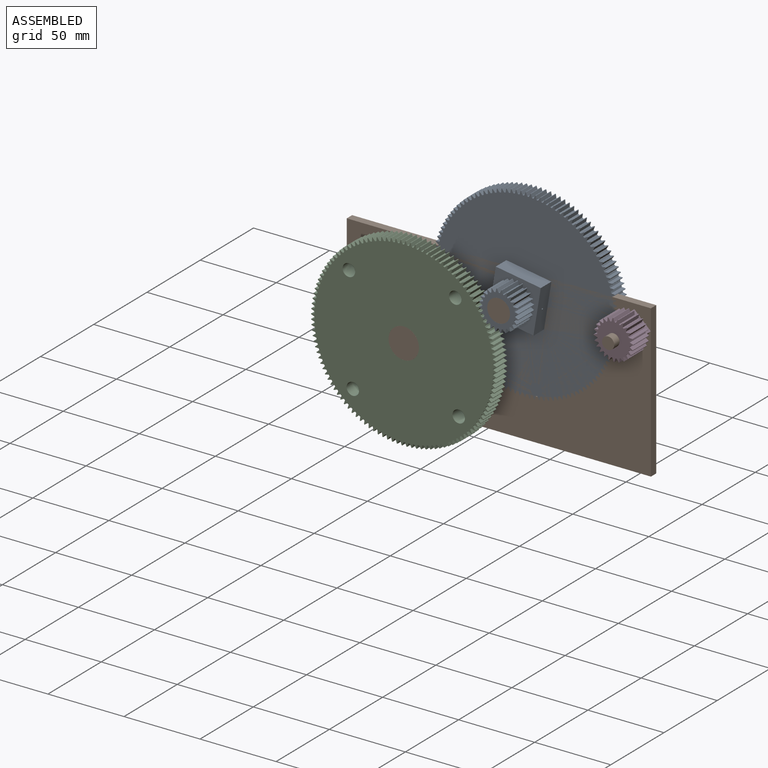
[diagram: assembled view]
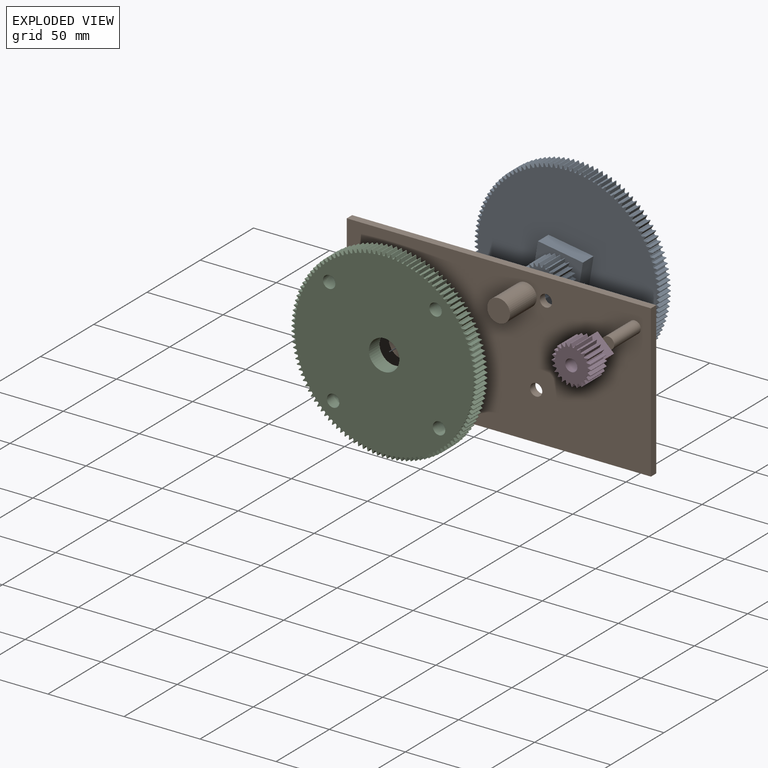
[diagram: exploded view]
GUIDED TOUR — MATED ASSEMBLY (Onshape document 46f5df53741bc79f24e5e52b, AutoMate assembly 46f5df53741bc79f24e5e52b_6ad09a4ab3057890df0f131d_3e118a92281bbf4fea981c0b_default)

This assembly has 4 components, labeled P0..P3 below (a component is one placed occurrence of a part; the same part can appear more than once), held together by 3 mates. A mate is a constraint between two components; its type names the relative motion it leaves free:
  REVOLUTE — leaves rotation about the listed axis free (a hinge).
Axis/direction vectors are unit vectors and 'through' points are millimeter coordinates, both in the assembly's world frame.

MATES
  1. REVOLUTE "Revolute 3": P1 <-> P3, axis (0.000, -1.000, 0.000) through (264.86, -38.01, 86.17) mm
  2. REVOLUTE "Revolute 1": P1 <-> P2, axis (0.000, -1.000, 0.000) through (130.51, -38.01, 50.17) mm
  3. REVOLUTE "Revolute 2": P1 <-> P0, axis (0.000, -1.000, 0.000) through (192.86, -38.01, 86.17) mm

ASSEMBLY ORDER
  1. P1 — the base component [order heuristic]
  2. P0 [order heuristic]
  3. P2 [order heuristic]
  4. P3 [order heuristic]
Order-tag legend:
  [order heuristic] — this assembly is geometrically interlocked (no collision-free removal order exists), so components are listed in mate-graph order; insertion feasibility is not verified.

Of the 4 components, 3 carry the full construction recipe — the FeatureScript program that regenerates the part's solid from scratch; the rest are supplied as boundary geometry only.
Each toured component is shown spotlighted twice — in the assembled view, then in the exploded view, where a leader line traces a displaced component back to its assembled socket (saturated green if recipe-attached, orange if geometry-only; every other component desaturated gray) — followed by its recipe or geometry summary and the mates that hold it.
NOTE — this tour is split across 2 documents so each fits a 32k-token context. This is document 1: the component sections continue in the remaining 1 document, each repeating the header above.
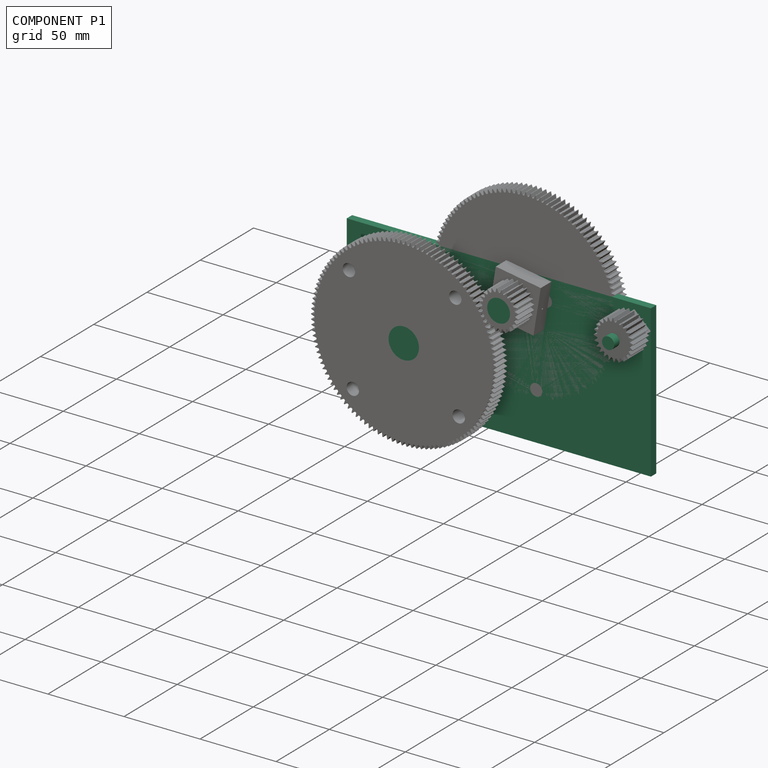
[diagram: component P1 — assembled]
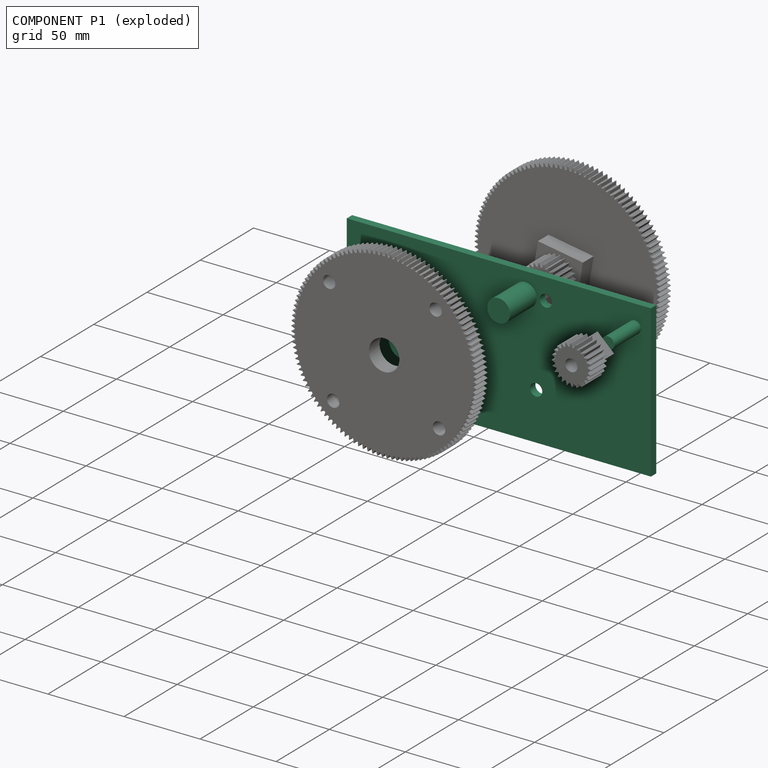
[diagram: component P1 — exploded]
COMPONENT P1 — recipe-attached (CADFS 00383874, mesh-verified: the recipe's output STEP matches this component's geometry to below the mesh-comparison resolution (tessellation chordal tolerance ~0.338 mm)).
Held by: REVOLUTE mate "Revolute 3" to P3; REVOLUTE mate "Revolute 1" to P2; REVOLUTE mate "Revolute 2" to P0.
Construction recipe (FeatureScript — the CAD program that rebuilds this solid; sketch coordinates are in the units given by the * unit suffixes, e.g. mm):

FeatureScript 1511;
import(path : "onshape/std/geometry.fs", version : "1511.0");
import(path : "onshape/std/common.fs", version : "1511.0");
const mm = millimeter;
const VERTEX = EntityType.VERTEX;
const EDGE = EntityType.EDGE;
const FACE = EntityType.FACE;
const BODY = EntityType.BODY;
function v(x, y){return vector(x, y);}
function OD(order){return orderDisambiguation(order);}
function OSD(set){return originalSetDisambiguation(set);}
function TD(topology){return topologyDisambiguation(topology);}
function TDD(query){return trueDependencyDisambiguation(query);}
function sQuery(a, b, c) {return sketchEntityQuery(a, b, c);}

annotation { "Feature Type Name" : "Feature", "Feature Type Description" : "" }
export const myFeature = defineFeature(function(context is Context, id is Id, definition is map)
    precondition{}
    {
        {
            var Q0;
            Q0=qCreatedBy(makeId("Front.planeOp"),FACE);
            var sketch = newSketch(context, id + "F0", { "sketchPlane" : qUnion([Q0])});
            skLineSegment(sketch, "E0.bottom", {"start": v(100, -50) * mm, "end": v(-100, -50) * mm});
            skLineSegment(sketch, "E0.top", {"start": v(100, 50) * mm, "end": v(-100, 50) * mm});
            skLineSegment(sketch, "E0.left", {"start": v(100, -50) * mm, "end": v(100, 50) * mm});
            skLineSegment(sketch, "E0.right", {"start": v(-100, -50) * mm, "end": v(-100, 50) * mm});
            skPoint(sketch, "E0.middle", {"position": v(0, 0) * mm});
            skLineSegment(sketch, "E1", {"start": v(0, 0) * mm, "end": v(-45, 0) * mm, "construction": true});
            skLineSegment(sketch, "E2", {"start": v(-45, 0) * mm, "end": v(17.35, 36) * mm, "construction": true});
            skLineSegment(sketch, "E3", {"start": v(-45, 0) * mm, "end": v(24.55, -18.63) * mm, "construction": true});
            skCircle(sketch, "E4", {"center": v(17.35, 36) * mm, "radius": 7.5 * mm});
            skCircle(sketch, "E5", {"center": v(24.55, -18.63) * mm, "radius": 4 * mm});
            skCircle(sketch, "E6", {"center": v(-45, 0) * mm, "radius": 10 * mm, "construction": true});
            skLineSegment(sketch, "E7", {"start": v(17.35, 36) * mm, "end": v(128.3, 36) * mm, "construction": true});
            skLineSegment(sketch, "E8", {"start": v(-45, 0) * mm, "end": v(30.9, 36) * mm, "construction": true});
            skCircle(sketch, "E9", {"center": v(30.9, 36) * mm, "radius": 4 * mm});
            skLineSegment(sketch, "E10", {"start": v(17.35, 36) * mm, "end": v(89.35, 36) * mm, "construction": true});
            skCircle(sketch, "E11", {"center": v(89.35, 36) * mm, "radius": 4 * mm});
            skSolve(sketch);
        }
        {
            var Q0;
            Q0 = qSketchRegion(id + "F0", true);
            extrude(context, id + "F1", {"entities" : qUnion([Q0]), "depth" : 5 * mm});
        }
        {
            var Q0;
            Q0=qCreatedBy(makeId("Front.planeOp"),FACE);
            var sketch = newSketch(context, id + "F2", { "sketchPlane" : qUnion([Q0])});
            skLineSegment(sketch, "E12", {"start": v(0, 0) * mm, "end": v(-45, 0) * mm, "construction": true});
            skLineSegment(sketch, "E13", {"start": v(-45, 0) * mm, "end": v(17.35, 36) * mm, "construction": true});
            skLineSegment(sketch, "E14", {"start": v(-45, 0) * mm, "end": v(24.55, -18.63) * mm, "construction": true});
            skCircle(sketch, "E15", {"center": v(-45, 0) * mm, "radius": 10 * mm});
            skCircle(sketch, "E16", {"center": v(17.35, 36) * mm, "radius": 7.5 * mm});
            skLineSegment(sketch, "E17", {"start": v(17.35, 36) * mm, "end": v(89.35, 36) * mm});
            skCircle(sketch, "E18", {"center": v(89.35, 36) * mm, "radius": 4 * mm});
            skSolve(sketch);
        }
        {
            var Q0;
            Q0 = qSketchRegion(id + "F2", true);
            extrude(context, id + "F3", {"entities" : qUnion([Q0]), "operationType" : NewBodyOperationType.ADD, "depth" : 30 * mm});
        }
    });
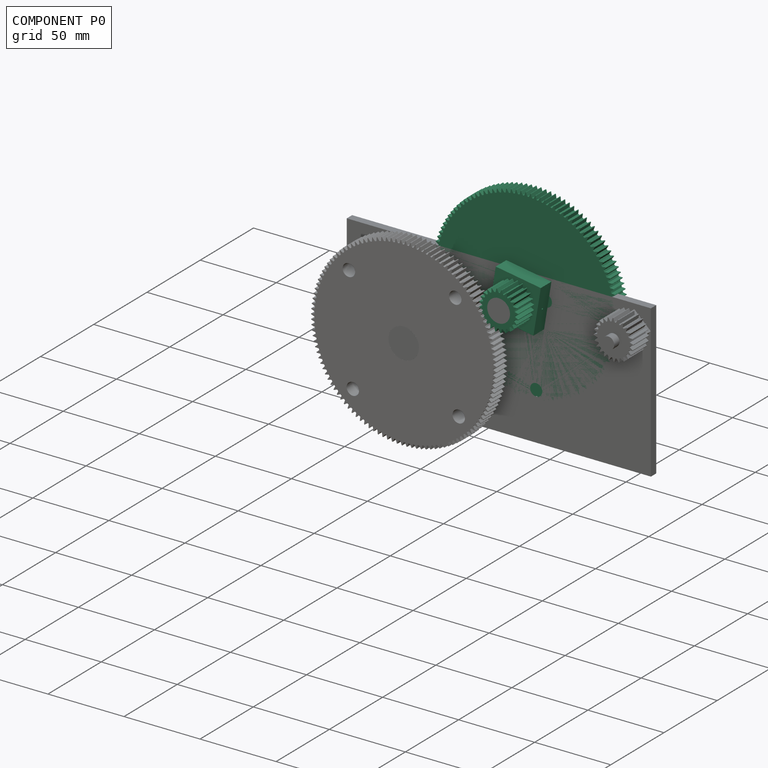
[diagram: component P0 — assembled]
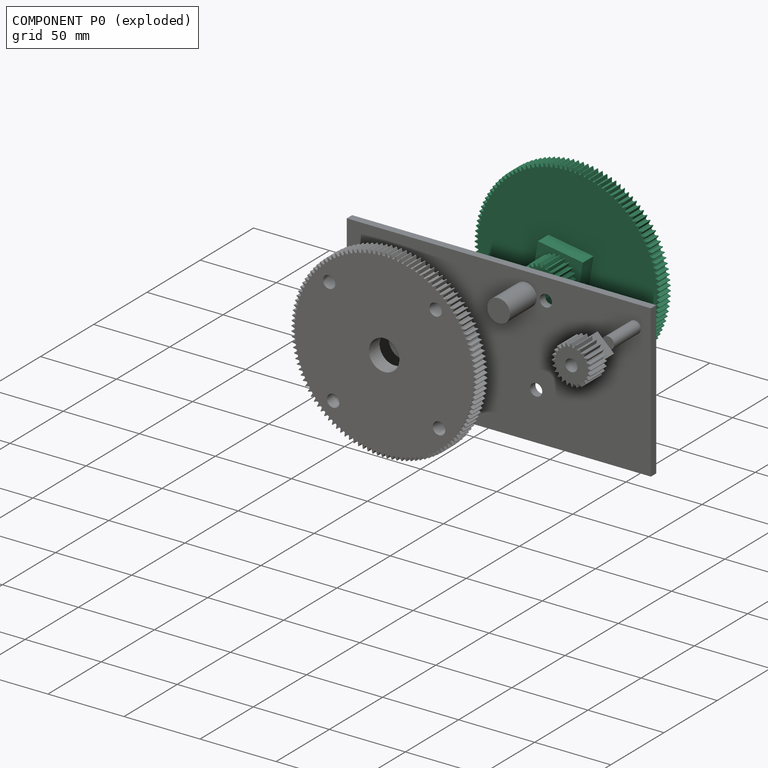
[diagram: component P0 — exploded]
COMPONENT P0 — recipe-attached (CADFS 00383869, mesh-verified: the recipe's output STEP matches this component's geometry to below the mesh-comparison resolution (tessellation chordal tolerance ~0.264 mm)).
Held by: REVOLUTE mate "Revolute 2" to P1.
Construction recipe (FeatureScript — the CAD program that rebuilds this solid; sketch coordinates are in the units given by the * unit suffixes, e.g. mm):

FeatureScript 1511;
import(path : "onshape/std/geometry.fs", version : "1511.0");
import(path : "onshape/std/common.fs", version : "1511.0");
const mm = millimeter;
const VERTEX = EntityType.VERTEX;
const EDGE = EntityType.EDGE;
const FACE = EntityType.FACE;
const BODY = EntityType.BODY;
function v(x, y){return vector(x, y);}
function OD(order){return orderDisambiguation(order);}
function OSD(set){return originalSetDisambiguation(set);}
function TD(topology){return topologyDisambiguation(topology);}
function TDD(query){return trueDependencyDisambiguation(query);}
function sQuery(a, b, c) {return sketchEntityQuery(a, b, c);}

annotation { "Feature Type Name" : "Feature", "Feature Type Description" : "" }
export const myFeature = defineFeature(function(context is Context, id is Id, definition is map)
    precondition{}
    {
        {
            var Q0;
            Q0=qCreatedBy(makeId("Front.planeOp"),FACE);
            var sketch = newSketch(context, id + "F0", { "sketchPlane" : qUnion([Q0])});
            skCircle(sketch, "E0", {"center": v(0, 0) * mm, "radius": 7.5 * mm});
            skCircle(sketch, "E1", {"center": v(0, 0) * mm, "radius": 10.75 * mm});
            skCircle(sketch, "E2", {"center": v(0, 0) * mm, "radius": 13 * mm, "construction": true});
            skLineSegment(sketch, "E3", {"start": v(-1.02, 10.7) * mm, "end": v(-0.19, 13) * mm});
            skLineSegment(sketch, "E4", {"start": v(-0.19, 13) * mm, "end": v(0, 13) * mm});
            skLineSegment(sketch, "E5", {"start": v(-1.02, 10.7) * mm, "end": v(-1.02, 13.91) * mm, "construction": true});
            skLineSegment(sketch, "E6.MirrorCS", {"start": v(0.19, 13) * mm, "end": v(0, 13) * mm});
            skLineSegment(sketch, "E7.MirrorCS", {"start": v(1.02, 10.7) * mm, "end": v(0.19, 13) * mm});
            skLineSegment(sketch, "E8.1.0", {"start": v(-3.76, 10.07) * mm, "end": v(-3.55, 12.5) * mm});
            skLineSegment(sketch, "E8.1.1", {"start": v(-3.55, 12.5) * mm, "end": v(-3.36, 12.56) * mm});
            skLineSegment(sketch, "E8.1.2", {"start": v(-3.18, 12.6) * mm, "end": v(-3.36, 12.56) * mm});
            skLineSegment(sketch, "E8.1.3", {"start": v(-1.78, 10.6) * mm, "end": v(-3.18, 12.6) * mm});
            skLineSegment(sketch, "E8.2.0", {"start": v(-6.24, 8.76) * mm, "end": v(-6.66, 11.16) * mm});
            skLineSegment(sketch, "E8.2.1", {"start": v(-6.66, 11.16) * mm, "end": v(-6.5, 11.26) * mm});
            skLineSegment(sketch, "E8.2.2", {"start": v(-6.34, 11.35) * mm, "end": v(-6.5, 11.26) * mm});
            skLineSegment(sketch, "E8.2.3", {"start": v(-4.46, 9.78) * mm, "end": v(-6.34, 11.35) * mm});
            skLineSegment(sketch, "E8.3.0", {"start": v(-8.3, 6.84) * mm, "end": v(-9.32, 9.06) * mm});
            skLineSegment(sketch, "E8.3.1", {"start": v(-9.32, 9.06) * mm, "end": v(-9.2, 9.2) * mm});
            skLineSegment(sketch, "E8.3.2", {"start": v(-9.06, 9.32) * mm, "end": v(-9.2, 9.2) * mm});
            skLineSegment(sketch, "E8.3.3", {"start": v(-6.84, 8.3) * mm, "end": v(-9.06, 9.32) * mm});
            skLineSegment(sketch, "E8.4.0", {"start": v(-9.78, 4.46) * mm, "end": v(-11.35, 6.34) * mm});
            skLineSegment(sketch, "E8.4.1", {"start": v(-11.35, 6.34) * mm, "end": v(-11.26, 6.5) * mm});
            skLineSegment(sketch, "E8.4.2", {"start": v(-11.16, 6.66) * mm, "end": v(-11.26, 6.5) * mm});
            skLineSegment(sketch, "E8.4.3", {"start": v(-8.76, 6.24) * mm, "end": v(-11.16, 6.66) * mm});
            skLineSegment(sketch, "E8.5.0", {"start": v(-10.6, 1.78) * mm, "end": v(-12.6, 3.18) * mm});
            skLineSegment(sketch, "E8.5.1", {"start": v(-12.6, 3.18) * mm, "end": v(-12.56, 3.36) * mm});
            skLineSegment(sketch, "E8.5.2", {"start": v(-12.5, 3.55) * mm, "end": v(-12.56, 3.36) * mm});
            skLineSegment(sketch, "E8.5.3", {"start": v(-10.07, 3.76) * mm, "end": v(-12.5, 3.55) * mm});
            skLineSegment(sketch, "E8.6.0", {"start": v(-10.7, -1.02) * mm, "end": v(-13, -0.19) * mm});
            skLineSegment(sketch, "E8.6.1", {"start": v(-13, -0.19) * mm, "end": v(-13, 0) * mm});
            skLineSegment(sketch, "E8.6.2", {"start": v(-13, 0.19) * mm, "end": v(-13, 0) * mm});
            skLineSegment(sketch, "E8.6.3", {"start": v(-10.7, 1.02) * mm, "end": v(-13, 0.19) * mm});
            skLineSegment(sketch, "E8.7.0", {"start": v(-10.07, -3.76) * mm, "end": v(-12.5, -3.55) * mm});
            skLineSegment(sketch, "E8.7.1", {"start": v(-12.5, -3.55) * mm, "end": v(-12.56, -3.36) * mm});
            skLineSegment(sketch, "E8.7.2", {"start": v(-12.6, -3.18) * mm, "end": v(-12.56, -3.36) * mm});
            skLineSegment(sketch, "E8.7.3", {"start": v(-10.6, -1.78) * mm, "end": v(-12.6, -3.18) * mm});
            skLineSegment(sketch, "E8.8.0", {"start": v(-8.76, -6.24) * mm, "end": v(-11.16, -6.66) * mm});
            skLineSegment(sketch, "E8.8.1", {"start": v(-11.16, -6.66) * mm, "end": v(-11.26, -6.5) * mm});
            skLineSegment(sketch, "E8.8.2", {"start": v(-11.35, -6.34) * mm, "end": v(-11.26, -6.5) * mm});
            skLineSegment(sketch, "E8.8.3", {"start": v(-9.78, -4.46) * mm, "end": v(-11.35, -6.34) * mm});
            skLineSegment(sketch, "E8.9.0", {"start": v(-6.84, -8.3) * mm, "end": v(-9.06, -9.32) * mm});
            skLineSegment(sketch, "E8.9.1", {"start": v(-9.06, -9.32) * mm, "end": v(-9.2, -9.2) * mm});
            skLineSegment(sketch, "E8.9.2", {"start": v(-9.32, -9.06) * mm, "end": v(-9.2, -9.2) * mm});
            skLineSegment(sketch, "E8.9.3", {"start": v(-8.3, -6.84) * mm, "end": v(-9.32, -9.06) * mm});
            skLineSegment(sketch, "E8.10.0", {"start": v(-4.46, -9.78) * mm, "end": v(-6.34, -11.35) * mm});
            skLineSegment(sketch, "E8.10.1", {"start": v(-6.34, -11.35) * mm, "end": v(-6.5, -11.26) * mm});
            skLineSegment(sketch, "E8.10.2", {"start": v(-6.66, -11.16) * mm, "end": v(-6.5, -11.26) * mm});
            skLineSegment(sketch, "E8.10.3", {"start": v(-6.24, -8.76) * mm, "end": v(-6.66, -11.16) * mm});
            skLineSegment(sketch, "E8.11.0", {"start": v(-1.78, -10.6) * mm, "end": v(-3.18, -12.6) * mm});
            skLineSegment(sketch, "E8.11.1", {"start": v(-3.18, -12.6) * mm, "end": v(-3.36, -12.56) * mm});
            skLineSegment(sketch, "E8.11.2", {"start": v(-3.55, -12.5) * mm, "end": v(-3.36, -12.56) * mm});
            skLineSegment(sketch, "E8.11.3", {"start": v(-3.76, -10.07) * mm, "end": v(-3.55, -12.5) * mm});
            skLineSegment(sketch, "E9.1.12.0", {"start": v(1.02, -10.7) * mm, "end": v(0.19, -13) * mm});
            skLineSegment(sketch, "E9.3.12.0", {"start": v(0.19, -13) * mm, "end": v(0, -13) * mm});
            skLineSegment(sketch, "E9.6.12.0", {"start": v(-0.19, -13) * mm, "end": v(0, -13) * mm});
            skLineSegment(sketch, "E9.9.12.0", {"start": v(-1.02, -10.7) * mm, "end": v(-0.19, -13) * mm});
            skLineSegment(sketch, "E9.1.13.0", {"start": v(3.76, -10.07) * mm, "end": v(3.55, -12.5) * mm});
            skLineSegment(sketch, "E9.3.13.0", {"start": v(3.55, -12.5) * mm, "end": v(3.36, -12.56) * mm});
            skLineSegment(sketch, "E9.6.13.0", {"start": v(3.18, -12.6) * mm, "end": v(3.36, -12.56) * mm});
            skLineSegment(sketch, "E9.9.13.0", {"start": v(1.78, -10.6) * mm, "end": v(3.18, -12.6) * mm});
            skLineSegment(sketch, "E9.1.14.0", {"start": v(6.24, -8.76) * mm, "end": v(6.66, -11.16) * mm});
            skLineSegment(sketch, "E9.3.14.0", {"start": v(6.66, -11.16) * mm, "end": v(6.5, -11.26) * mm});
            skLineSegment(sketch, "E9.6.14.0", {"start": v(6.34, -11.35) * mm, "end": v(6.5, -11.26) * mm});
            skLineSegment(sketch, "E9.9.14.0", {"start": v(4.46, -9.78) * mm, "end": v(6.34, -11.35) * mm});
            skLineSegment(sketch, "E9.1.15.0", {"start": v(8.3, -6.84) * mm, "end": v(9.32, -9.06) * mm});
            skLineSegment(sketch, "E9.3.15.0", {"start": v(9.32, -9.06) * mm, "end": v(9.2, -9.2) * mm});
            skLineSegment(sketch, "E9.6.15.0", {"start": v(9.06, -9.32) * mm, "end": v(9.2, -9.2) * mm});
            skLineSegment(sketch, "E9.9.15.0", {"start": v(6.84, -8.3) * mm, "end": v(9.06, -9.32) * mm});
            skLineSegment(sketch, "E9.1.16.0", {"start": v(9.78, -4.46) * mm, "end": v(11.35, -6.34) * mm});
            skLineSegment(sketch, "E9.3.16.0", {"start": v(11.35, -6.34) * mm, "end": v(11.26, -6.5) * mm});
            skLineSegment(sketch, "E9.6.16.0", {"start": v(11.16, -6.66) * mm, "end": v(11.26, -6.5) * mm});
            skLineSegment(sketch, "E9.9.16.0", {"start": v(8.76, -6.24) * mm, "end": v(11.16, -6.66) * mm});
            skLineSegment(sketch, "E9.1.17.0", {"start": v(10.6, -1.78) * mm, "end": v(12.6, -3.18) * mm});
            skLineSegment(sketch, "E9.3.17.0", {"start": v(12.6, -3.18) * mm, "end": v(12.56, -3.36) * mm});
            skLineSegment(sketch, "E9.6.17.0", {"start": v(12.5, -3.55) * mm, "end": v(12.56, -3.36) * mm});
            skLineSegment(sketch, "E9.9.17.0", {"start": v(10.07, -3.76) * mm, "end": v(12.5, -3.55) * mm});
            skLineSegment(sketch, "E9.1.18.0", {"start": v(10.7, 1.02) * mm, "end": v(13, 0.19) * mm});
            skLineSegment(sketch, "E9.3.18.0", {"start": v(13, 0.19) * mm, "end": v(13, 0) * mm});
            skLineSegment(sketch, "E9.6.18.0", {"start": v(13, -0.19) * mm, "end": v(13, 0) * mm});
            skLineSegment(sketch, "E9.9.18.0", {"start": v(10.7, -1.02) * mm, "end": v(13, -0.19) * mm});
            skLineSegment(sketch, "E9.1.19.0", {"start": v(10.07, 3.76) * mm, "end": v(12.5, 3.55) * mm});
            skLineSegment(sketch, "E9.3.19.0", {"start": v(12.5, 3.55) * mm, "end": v(12.56, 3.36) * mm});
            skLineSegment(sketch, "E9.6.19.0", {"start": v(12.6, 3.18) * mm, "end": v(12.56, 3.36) * mm});
            skLineSegment(sketch, "E9.9.19.0", {"start": v(10.6, 1.78) * mm, "end": v(12.6, 3.18) * mm});
            skLineSegment(sketch, "E9.1.20.0", {"start": v(8.76, 6.24) * mm, "end": v(11.16, 6.66) * mm});
            skLineSegment(sketch, "E9.3.20.0", {"start": v(11.16, 6.66) * mm, "end": v(11.26, 6.5) * mm});
            skLineSegment(sketch, "E9.6.20.0", {"start": v(11.35, 6.34) * mm, "end": v(11.26, 6.5) * mm});
            skLineSegment(sketch, "E9.9.20.0", {"start": v(9.78, 4.46) * mm, "end": v(11.35, 6.34) * mm});
            skLineSegment(sketch, "E9.1.21.0", {"start": v(6.84, 8.3) * mm, "end": v(9.06, 9.32) * mm});
            skLineSegment(sketch, "E9.3.21.0", {"start": v(9.06, 9.32) * mm, "end": v(9.2, 9.2) * mm});
            skLineSegment(sketch, "E9.6.21.0", {"start": v(9.32, 9.06) * mm, "end": v(9.2, 9.2) * mm});
            skLineSegment(sketch, "E9.9.21.0", {"start": v(8.3, 6.84) * mm, "end": v(9.32, 9.06) * mm});
            skLineSegment(sketch, "E9.1.22.0", {"start": v(4.46, 9.78) * mm, "end": v(6.34, 11.35) * mm});
            skLineSegment(sketch, "E9.3.22.0", {"start": v(6.34, 11.35) * mm, "end": v(6.5, 11.26) * mm});
            skLineSegment(sketch, "E9.6.22.0", {"start": v(6.66, 11.16) * mm, "end": v(6.5, 11.26) * mm});
            skLineSegment(sketch, "E9.9.22.0", {"start": v(6.24, 8.76) * mm, "end": v(6.66, 11.16) * mm});
            skLineSegment(sketch, "E9.1.23.0", {"start": v(1.78, 10.6) * mm, "end": v(3.18, 12.6) * mm});
            skLineSegment(sketch, "E9.3.23.0", {"start": v(3.18, 12.6) * mm, "end": v(3.36, 12.56) * mm});
            skLineSegment(sketch, "E9.6.23.0", {"start": v(3.55, 12.5) * mm, "end": v(3.36, 12.56) * mm});
            skLineSegment(sketch, "E9.9.23.0", {"start": v(3.76, 10.07) * mm, "end": v(3.55, 12.5) * mm});
            skSolve(sketch);
        }
        {
            var Q0;
            Q0=qSketchRegion(id+"F0",true);
            extrude(context, id + "F1", {"entities" : qUnion([Q0]), "depth" : 15 * mm});
        }
        {
            var Q0;
            Q0=qCreatedBy(makeId("Front.planeOp"),FACE);
            var sketch = newSketch(context, id + "F2", { "sketchPlane" : qUnion([Q0])});
            skCircle(sketch, "E10", {"center": v(0, 0) * mm, "radius": 7.5 * mm});
            skLineSegment(sketch, "E11.bottom", {"start": v(-15, -15) * mm, "end": v(15, -15) * mm});
            skLineSegment(sketch, "E11.top", {"start": v(-15, 15) * mm, "end": v(15, 15) * mm});
            skLineSegment(sketch, "E11.left", {"start": v(-15, -15) * mm, "end": v(-15, 15) * mm});
            skLineSegment(sketch, "E11.right", {"start": v(15, -15) * mm, "end": v(15, 15) * mm});
            skSolve(sketch);
        }
        {
            var Q0;
            Q0 = qSketchRegion(id + "F2", true);
            extrude(context, id + "F3", {"entities" : qUnion([Q0]), "operationType" : NewBodyOperationType.ADD, "depth" : -10 * mm});
        }
        {
            var Q0;
            Q0=makeQuery(id+"F3.opExtrude","CAP_FACE",FACE,{"disambiguationData":[OSD([sQuery(id+"F2.wireOp",EDGE,"Zh5lLQ9h-1iR5-KiPg-C2Wr-JR3NM9Zv75rL"),sQuery(id+"F2.wireOp",EDGE,"E10")])],"isStart":false});
            var sketch = newSketch(context, id + "F4", { "sketchPlane" : qUnion([Q0])});
            skCircle(sketch, "E12", {"center": v(0, 0) * mm, "radius": 58.75 * mm});
            skCircle(sketch, "E13", {"center": v(0, 0) * mm, "radius": 61 * mm, "construction": true});
            skLineSegment(sketch, "E14", {"start": v(-1, 58.74) * mm, "end": v(-1, 64.16) * mm, "construction": true});
            skLineSegment(sketch, "E15", {"start": v(-1, 58.74) * mm, "end": v(-0.19, 61) * mm});
            skLineSegment(sketch, "E16", {"start": v(-0.19, 61) * mm, "end": v(0, 61) * mm});
            skLineSegment(sketch, "E17.MirrorCS", {"start": v(0.19, 61) * mm, "end": v(0, 61) * mm});
            skLineSegment(sketch, "E18.MirrorCS", {"start": v(1, 58.74) * mm, "end": v(0.19, 61) * mm});
            skLineSegment(sketch, "E19.1.0", {"start": v(-4.08, 58.6) * mm, "end": v(-3.38, 60.9) * mm});
            skLineSegment(sketch, "E19.1.1", {"start": v(-3.38, 60.9) * mm, "end": v(-3.2, 60.92) * mm});
            skLineSegment(sketch, "E19.1.2", {"start": v(-3, 60.93) * mm, "end": v(-3.2, 60.92) * mm});
            skLineSegment(sketch, "E19.1.3", {"start": v(-2.07, 58.71) * mm, "end": v(-3, 60.93) * mm});
            skLineSegment(sketch, "E19.2.0", {"start": v(-7.14, 58.31) * mm, "end": v(-6.56, 60.65) * mm});
            skLineSegment(sketch, "E19.2.1", {"start": v(-6.56, 60.65) * mm, "end": v(-6.38, 60.67) * mm});
            skLineSegment(sketch, "E19.2.2", {"start": v(-6.19, 60.69) * mm, "end": v(-6.38, 60.67) * mm});
            skLineSegment(sketch, "E19.2.3", {"start": v(-5.14, 58.53) * mm, "end": v(-6.19, 60.69) * mm});
            skLineSegment(sketch, "E19.3.0", {"start": v(-10.19, 57.86) * mm, "end": v(-9.73, 60.22) * mm});
            skLineSegment(sketch, "E19.3.1", {"start": v(-9.73, 60.22) * mm, "end": v(-9.54, 60.25) * mm});
            skLineSegment(sketch, "E19.3.2", {"start": v(-9.36, 60.28) * mm, "end": v(-9.54, 60.25) * mm});
            skLineSegment(sketch, "E19.3.3", {"start": v(-8.2, 58.18) * mm, "end": v(-9.36, 60.28) * mm});
            skLineSegment(sketch, "E19.4.0", {"start": v(-13.2, 57.25) * mm, "end": v(-12.87, 59.63) * mm});
            skLineSegment(sketch, "E19.4.1", {"start": v(-12.87, 59.63) * mm, "end": v(-12.68, 59.67) * mm});
            skLineSegment(sketch, "E19.4.2", {"start": v(-12.5, 59.7) * mm, "end": v(-12.68, 59.67) * mm});
            skLineSegment(sketch, "E19.4.3", {"start": v(-11.23, 57.67) * mm, "end": v(-12.5, 59.7) * mm});
            skLineSegment(sketch, "E19.5.0", {"start": v(-16.18, 56.48) * mm, "end": v(-15.97, 58.87) * mm});
            skLineSegment(sketch, "E19.5.1", {"start": v(-15.97, 58.87) * mm, "end": v(-15.79, 58.92) * mm});
            skLineSegment(sketch, "E19.5.2", {"start": v(-15.6, 58.97) * mm, "end": v(-15.79, 58.92) * mm});
            skLineSegment(sketch, "E19.5.3", {"start": v(-14.23, 57) * mm, "end": v(-15.6, 58.97) * mm});
            skLineSegment(sketch, "E19.6.0", {"start": v(-19.11, 55.55) * mm, "end": v(-19.03, 57.96) * mm});
            skLineSegment(sketch, "E19.6.1", {"start": v(-19.03, 57.96) * mm, "end": v(-18.85, 58.01) * mm});
            skLineSegment(sketch, "E19.6.2", {"start": v(-18.67, 58.07) * mm, "end": v(-18.85, 58.01) * mm});
            skLineSegment(sketch, "E19.6.3", {"start": v(-17.2, 56.18) * mm, "end": v(-18.67, 58.07) * mm});
            skLineSegment(sketch, "E19.7.0", {"start": v(-22, 54.48) * mm, "end": v(-22.04, 56.88) * mm});
            skLineSegment(sketch, "E19.7.1", {"start": v(-22.04, 56.88) * mm, "end": v(-21.86, 56.95) * mm});
            skLineSegment(sketch, "E19.7.2", {"start": v(-21.69, 57.02) * mm, "end": v(-21.86, 56.95) * mm});
            skLineSegment(sketch, "E19.7.3", {"start": v(-20.1, 55.2) * mm, "end": v(-21.69, 57.02) * mm});
            skLineSegment(sketch, "E19.8.0", {"start": v(-24.81, 53.25) * mm, "end": v(-24.98, 55.65) * mm});
            skLineSegment(sketch, "E19.8.1", {"start": v(-24.98, 55.65) * mm, "end": v(-24.81, 55.73) * mm});
            skLineSegment(sketch, "E19.8.2", {"start": v(-24.64, 55.8) * mm, "end": v(-24.81, 55.73) * mm});
            skLineSegment(sketch, "E19.8.3", {"start": v(-22.97, 54.07) * mm, "end": v(-24.64, 55.8) * mm});
            skLineSegment(sketch, "E19.9.0", {"start": v(-27.57, 51.88) * mm, "end": v(-27.86, 54.27) * mm});
            skLineSegment(sketch, "E19.9.1", {"start": v(-27.86, 54.27) * mm, "end": v(-27.7, 54.35) * mm});
            skLineSegment(sketch, "E19.9.2", {"start": v(-27.53, 54.44) * mm, "end": v(-27.7, 54.35) * mm});
            skLineSegment(sketch, "E19.9.3", {"start": v(-25.77, 52.8) * mm, "end": v(-27.53, 54.44) * mm});
            skLineSegment(sketch, "E19.10.0", {"start": v(-30.24, 50.37) * mm, "end": v(-30.66, 52.73) * mm});
            skLineSegment(sketch, "E19.10.1", {"start": v(-30.66, 52.73) * mm, "end": v(-30.5, 52.83) * mm});
            skLineSegment(sketch, "E19.10.2", {"start": v(-30.34, 52.92) * mm, "end": v(-30.5, 52.83) * mm});
            skLineSegment(sketch, "E19.10.3", {"start": v(-28.5, 51.38) * mm, "end": v(-30.34, 52.92) * mm});
            skLineSegment(sketch, "E19.11.0", {"start": v(-32.84, 48.71) * mm, "end": v(-33.38, 51.06) * mm});
            skLineSegment(sketch, "E19.11.1", {"start": v(-33.38, 51.06) * mm, "end": v(-33.22, 51.16) * mm});
            skLineSegment(sketch, "E19.11.2", {"start": v(-33.07, 51.26) * mm, "end": v(-33.22, 51.16) * mm});
            skLineSegment(sketch, "E19.11.3", {"start": v(-31.15, 49.81) * mm, "end": v(-33.07, 51.26) * mm});
            skLineSegment(sketch, "E19.12.0", {"start": v(-35.34, 46.93) * mm, "end": v(-36, 49.24) * mm});
            skLineSegment(sketch, "E19.12.1", {"start": v(-36, 49.24) * mm, "end": v(-35.85, 49.35) * mm});
            skLineSegment(sketch, "E19.12.2", {"start": v(-35.7, 49.46) * mm, "end": v(-35.85, 49.35) * mm});
            skLineSegment(sketch, "E19.12.3", {"start": v(-33.71, 48.12) * mm, "end": v(-35.7, 49.46) * mm});
            skLineSegment(sketch, "E19.13.0", {"start": v(-37.75, 45.02) * mm, "end": v(-38.53, 47.29) * mm});
            skLineSegment(sketch, "E19.13.1", {"start": v(-38.53, 47.29) * mm, "end": v(-38.39, 47.4) * mm});
            skLineSegment(sketch, "E19.13.2", {"start": v(-38.24, 47.52) * mm, "end": v(-38.39, 47.4) * mm});
            skLineSegment(sketch, "E19.13.3", {"start": v(-36.18, 46.29) * mm, "end": v(-38.24, 47.52) * mm});
            skLineSegment(sketch, "E19.14.0", {"start": v(-40.06, 42.98) * mm, "end": v(-40.96, 45.2) * mm});
            skLineSegment(sketch, "E19.14.1", {"start": v(-40.96, 45.2) * mm, "end": v(-40.82, 45.33) * mm});
            skLineSegment(sketch, "E19.14.2", {"start": v(-40.68, 45.46) * mm, "end": v(-40.82, 45.33) * mm});
            skLineSegment(sketch, "E19.14.3", {"start": v(-38.56, 44.33) * mm, "end": v(-40.68, 45.46) * mm});
            skLineSegment(sketch, "E19.15.0", {"start": v(-42.25, 40.82) * mm, "end": v(-43.27, 43) * mm});
            skLineSegment(sketch, "E19.15.1", {"start": v(-43.27, 43) * mm, "end": v(-43.13, 43.13) * mm});
            skLineSegment(sketch, "E19.15.2", {"start": v(-43, 43.27) * mm, "end": v(-43.13, 43.13) * mm});
            skLineSegment(sketch, "E19.15.3", {"start": v(-40.82, 42.25) * mm, "end": v(-43, 43.27) * mm});
            skLineSegment(sketch, "E19.16.0", {"start": v(-44.33, 38.56) * mm, "end": v(-45.46, 40.68) * mm});
            skLineSegment(sketch, "E19.16.1", {"start": v(-45.46, 40.68) * mm, "end": v(-45.33, 40.82) * mm});
            skLineSegment(sketch, "E19.16.2", {"start": v(-45.2, 40.96) * mm, "end": v(-45.33, 40.82) * mm});
            skLineSegment(sketch, "E19.16.3", {"start": v(-42.98, 40.06) * mm, "end": v(-45.2, 40.96) * mm});
            skLineSegment(sketch, "E19.17.0", {"start": v(-46.29, 36.18) * mm, "end": v(-47.52, 38.24) * mm});
            skLineSegment(sketch, "E19.17.1", {"start": v(-47.52, 38.24) * mm, "end": v(-47.4, 38.39) * mm});
            skLineSegment(sketch, "E19.17.2", {"start": v(-47.29, 38.53) * mm, "end": v(-47.4, 38.39) * mm});
            skLineSegment(sketch, "E19.17.3", {"start": v(-45.02, 37.75) * mm, "end": v(-47.29, 38.53) * mm});
            skLineSegment(sketch, "E19.18.0", {"start": v(-48.12, 33.71) * mm, "end": v(-49.46, 35.7) * mm});
            skLineSegment(sketch, "E19.18.1", {"start": v(-49.46, 35.7) * mm, "end": v(-49.35, 35.85) * mm});
            skLineSegment(sketch, "E19.18.2", {"start": v(-49.24, 36) * mm, "end": v(-49.35, 35.85) * mm});
            skLineSegment(sketch, "E19.18.3", {"start": v(-46.93, 35.34) * mm, "end": v(-49.24, 36) * mm});
            skLineSegment(sketch, "E19.19.0", {"start": v(-49.81, 31.15) * mm, "end": v(-51.26, 33.07) * mm});
            skLineSegment(sketch, "E19.19.1", {"start": v(-51.26, 33.07) * mm, "end": v(-51.16, 33.22) * mm});
            skLineSegment(sketch, "E19.19.2", {"start": v(-51.06, 33.38) * mm, "end": v(-51.16, 33.22) * mm});
            skLineSegment(sketch, "E19.19.3", {"start": v(-48.71, 32.84) * mm, "end": v(-51.06, 33.38) * mm});
            skLineSegment(sketch, "E19.20.0", {"start": v(-51.38, 28.5) * mm, "end": v(-52.92, 30.34) * mm});
            skLineSegment(sketch, "E19.20.1", {"start": v(-52.92, 30.34) * mm, "end": v(-52.83, 30.5) * mm});
            skLineSegment(sketch, "E19.20.2", {"start": v(-52.73, 30.66) * mm, "end": v(-52.83, 30.5) * mm});
            skLineSegment(sketch, "E19.20.3", {"start": v(-50.37, 30.24) * mm, "end": v(-52.73, 30.66) * mm});
            skLineSegment(sketch, "E19.21.0", {"start": v(-52.8, 25.77) * mm, "end": v(-54.44, 27.53) * mm});
            skLineSegment(sketch, "E19.21.1", {"start": v(-54.44, 27.53) * mm, "end": v(-54.35, 27.7) * mm});
            skLineSegment(sketch, "E19.21.2", {"start": v(-54.27, 27.86) * mm, "end": v(-54.35, 27.7) * mm});
            skLineSegment(sketch, "E19.21.3", {"start": v(-51.88, 27.57) * mm, "end": v(-54.27, 27.86) * mm});
            skLineSegment(sketch, "E19.22.0", {"start": v(-54.07, 22.97) * mm, "end": v(-55.8, 24.64) * mm});
            skLineSegment(sketch, "E19.22.1", {"start": v(-55.8, 24.64) * mm, "end": v(-55.73, 24.81) * mm});
            skLineSegment(sketch, "E19.22.2", {"start": v(-55.65, 24.98) * mm, "end": v(-55.73, 24.81) * mm});
            skLineSegment(sketch, "E19.22.3", {"start": v(-53.25, 24.81) * mm, "end": v(-55.65, 24.98) * mm});
            skLineSegment(sketch, "E19.23.0", {"start": v(-55.2, 20.1) * mm, "end": v(-57.02, 21.69) * mm});
            skLineSegment(sketch, "E19.23.1", {"start": v(-57.02, 21.69) * mm, "end": v(-56.95, 21.86) * mm});
            skLineSegment(sketch, "E19.23.2", {"start": v(-56.88, 22.04) * mm, "end": v(-56.95, 21.86) * mm});
            skLineSegment(sketch, "E19.23.3", {"start": v(-54.48, 22) * mm, "end": v(-56.88, 22.04) * mm});
            skLineSegment(sketch, "E19.24.0", {"start": v(-56.18, 17.2) * mm, "end": v(-58.07, 18.67) * mm});
            skLineSegment(sketch, "E19.24.1", {"start": v(-58.07, 18.67) * mm, "end": v(-58.01, 18.85) * mm});
            skLineSegment(sketch, "E19.24.2", {"start": v(-57.96, 19.03) * mm, "end": v(-58.01, 18.85) * mm});
            skLineSegment(sketch, "E19.24.3", {"start": v(-55.55, 19.11) * mm, "end": v(-57.96, 19.03) * mm});
            skLineSegment(sketch, "E19.25.0", {"start": v(-57, 14.23) * mm, "end": v(-58.97, 15.6) * mm});
            skLineSegment(sketch, "E19.25.1", {"start": v(-58.97, 15.6) * mm, "end": v(-58.92, 15.79) * mm});
            skLineSegment(sketch, "E19.25.2", {"start": v(-58.87, 15.97) * mm, "end": v(-58.92, 15.79) * mm});
            skLineSegment(sketch, "E19.25.3", {"start": v(-56.48, 16.18) * mm, "end": v(-58.87, 15.97) * mm});
            skLineSegment(sketch, "E19.26.0", {"start": v(-57.67, 11.23) * mm, "end": v(-59.7, 12.5) * mm});
            skLineSegment(sketch, "E19.26.1", {"start": v(-59.7, 12.5) * mm, "end": v(-59.67, 12.68) * mm});
            skLineSegment(sketch, "E19.26.2", {"start": v(-59.63, 12.87) * mm, "end": v(-59.67, 12.68) * mm});
            skLineSegment(sketch, "E19.26.3", {"start": v(-57.25, 13.2) * mm, "end": v(-59.63, 12.87) * mm});
            skLineSegment(sketch, "E19.27.0", {"start": v(-58.18, 8.2) * mm, "end": v(-60.28, 9.36) * mm});
            skLineSegment(sketch, "E19.27.1", {"start": v(-60.28, 9.36) * mm, "end": v(-60.25, 9.54) * mm});
            skLineSegment(sketch, "E19.27.2", {"start": v(-60.22, 9.73) * mm, "end": v(-60.25, 9.54) * mm});
            skLineSegment(sketch, "E19.27.3", {"start": v(-57.86, 10.19) * mm, "end": v(-60.22, 9.73) * mm});
            skLineSegment(sketch, "E19.28.0", {"start": v(-58.53, 5.14) * mm, "end": v(-60.69, 6.19) * mm});
            skLineSegment(sketch, "E19.28.1", {"start": v(-60.69, 6.19) * mm, "end": v(-60.67, 6.38) * mm});
            skLineSegment(sketch, "E19.28.2", {"start": v(-60.65, 6.56) * mm, "end": v(-60.67, 6.38) * mm});
            skLineSegment(sketch, "E19.28.3", {"start": v(-58.31, 7.14) * mm, "end": v(-60.65, 6.56) * mm});
            skLineSegment(sketch, "E19.29.0", {"start": v(-58.71, 2.07) * mm, "end": v(-60.93, 3) * mm});
            skLineSegment(sketch, "E19.29.1", {"start": v(-60.93, 3) * mm, "end": v(-60.92, 3.2) * mm});
            skLineSegment(sketch, "E19.29.2", {"start": v(-60.9, 3.38) * mm, "end": v(-60.92, 3.2) * mm});
            skLineSegment(sketch, "E19.29.3", {"start": v(-58.6, 4.08) * mm, "end": v(-60.9, 3.38) * mm});
            skLineSegment(sketch, "E19.30.0", {"start": v(-58.74, -1) * mm, "end": v(-61, -0.19) * mm});
            skLineSegment(sketch, "E19.30.1", {"start": v(-61, -0.19) * mm, "end": v(-61, 0) * mm});
            skLineSegment(sketch, "E19.30.2", {"start": v(-61, 0.19) * mm, "end": v(-61, 0) * mm});
            skLineSegment(sketch, "E19.30.3", {"start": v(-58.74, 1) * mm, "end": v(-61, 0.19) * mm});
            skLineSegment(sketch, "E19.31.0", {"start": v(-58.6, -4.08) * mm, "end": v(-60.9, -3.38) * mm});
            skLineSegment(sketch, "E19.31.1", {"start": v(-60.9, -3.38) * mm, "end": v(-60.92, -3.2) * mm});
            skLineSegment(sketch, "E19.31.2", {"start": v(-60.93, -3) * mm, "end": v(-60.92, -3.2) * mm});
            skLineSegment(sketch, "E19.31.3", {"start": v(-58.71, -2.07) * mm, "end": v(-60.93, -3) * mm});
            skLineSegment(sketch, "E19.32.0", {"start": v(-58.31, -7.14) * mm, "end": v(-60.65, -6.56) * mm});
            skLineSegment(sketch, "E19.32.1", {"start": v(-60.65, -6.56) * mm, "end": v(-60.67, -6.38) * mm});
            skLineSegment(sketch, "E19.32.2", {"start": v(-60.69, -6.19) * mm, "end": v(-60.67, -6.38) * mm});
            skLineSegment(sketch, "E19.32.3", {"start": v(-58.53, -5.14) * mm, "end": v(-60.69, -6.19) * mm});
            skLineSegment(sketch, "E19.33.0", {"start": v(-57.86, -10.19) * mm, "end": v(-60.22, -9.73) * mm});
            skLineSegment(sketch, "E19.33.1", {"start": v(-60.22, -9.73) * mm, "end": v(-60.25, -9.54) * mm});
            skLineSegment(sketch, "E19.33.2", {"start": v(-60.28, -9.36) * mm, "end": v(-60.25, -9.54) * mm});
            skLineSegment(sketch, "E19.33.3", {"start": v(-58.18, -8.2) * mm, "end": v(-60.28, -9.36) * mm});
            skLineSegment(sketch, "E19.34.0", {"start": v(-57.25, -13.2) * mm, "end": v(-59.63, -12.87) * mm});
            skLineSegment(sketch, "E19.34.1", {"start": v(-59.63, -12.87) * mm, "end": v(-59.67, -12.68) * mm});
            skLineSegment(sketch, "E19.34.2", {"start": v(-59.7, -12.5) * mm, "end": v(-59.67, -12.68) * mm});
            skLineSegment(sketch, "E19.34.3", {"start": v(-57.67, -11.23) * mm, "end": v(-59.7, -12.5) * mm});
            skLineSegment(sketch, "E19.35.0", {"start": v(-56.48, -16.18) * mm, "end": v(-58.87, -15.97) * mm});
            skLineSegment(sketch, "E19.35.1", {"start": v(-58.87, -15.97) * mm, "end": v(-58.92, -15.79) * mm});
            skLineSegment(sketch, "E19.35.2", {"start": v(-58.97, -15.6) * mm, "end": v(-58.92, -15.79) * mm});
            skLineSegment(sketch, "E19.35.3", {"start": v(-57, -14.23) * mm, "end": v(-58.97, -15.6) * mm});
            skLineSegment(sketch, "E19.36.0", {"start": v(-55.55, -19.11) * mm, "end": v(-57.96, -19.03) * mm});
            skLineSegment(sketch, "E19.36.1", {"start": v(-57.96, -19.03) * mm, "end": v(-58.01, -18.85) * mm});
            skLineSegment(sketch, "E19.36.2", {"start": v(-58.07, -18.67) * mm, "end": v(-58.01, -18.85) * mm});
            skLineSegment(sketch, "E19.36.3", {"start": v(-56.18, -17.2) * mm, "end": v(-58.07, -18.67) * mm});
            skLineSegment(sketch, "E19.37.0", {"start": v(-54.48, -22) * mm, "end": v(-56.88, -22.04) * mm});
            skLineSegment(sketch, "E19.37.1", {"start": v(-56.88, -22.04) * mm, "end": v(-56.95, -21.86) * mm});
            skLineSegment(sketch, "E19.37.2", {"start": v(-57.02, -21.69) * mm, "end": v(-56.95, -21.86) * mm});
            skLineSegment(sketch, "E19.37.3", {"start": v(-55.2, -20.1) * mm, "end": v(-57.02, -21.69) * mm});
            skLineSegment(sketch, "E19.38.0", {"start": v(-53.25, -24.81) * mm, "end": v(-55.65, -24.98) * mm});
            skLineSegment(sketch, "E19.38.1", {"start": v(-55.65, -24.98) * mm, "end": v(-55.73, -24.81) * mm});
            skLineSegment(sketch, "E19.38.2", {"start": v(-55.8, -24.64) * mm, "end": v(-55.73, -24.81) * mm});
            skLineSegment(sketch, "E19.38.3", {"start": v(-54.07, -22.97) * mm, "end": v(-55.8, -24.64) * mm});
            skLineSegment(sketch, "E19.39.0", {"start": v(-51.88, -27.57) * mm, "end": v(-54.27, -27.86) * mm});
            skLineSegment(sketch, "E19.39.1", {"start": v(-54.27, -27.86) * mm, "end": v(-54.35, -27.7) * mm});
            skLineSegment(sketch, "E19.39.2", {"start": v(-54.44, -27.53) * mm, "end": v(-54.35, -27.7) * mm});
            skLineSegment(sketch, "E19.39.3", {"start": v(-52.8, -25.77) * mm, "end": v(-54.44, -27.53) * mm});
            skLineSegment(sketch, "E19.40.0", {"start": v(-50.37, -30.24) * mm, "end": v(-52.73, -30.66) * mm});
            skLineSegment(sketch, "E19.40.1", {"start": v(-52.73, -30.66) * mm, "end": v(-52.83, -30.5) * mm});
            skLineSegment(sketch, "E19.40.2", {"start": v(-52.92, -30.34) * mm, "end": v(-52.83, -30.5) * mm});
            skLineSegment(sketch, "E19.40.3", {"start": v(-51.38, -28.5) * mm, "end": v(-52.92, -30.34) * mm});
            skLineSegment(sketch, "E19.41.0", {"start": v(-48.71, -32.84) * mm, "end": v(-51.06, -33.38) * mm});
            skLineSegment(sketch, "E19.41.1", {"start": v(-51.06, -33.38) * mm, "end": v(-51.16, -33.22) * mm});
            skLineSegment(sketch, "E19.41.2", {"start": v(-51.26, -33.07) * mm, "end": v(-51.16, -33.22) * mm});
            skLineSegment(sketch, "E19.41.3", {"start": v(-49.81, -31.15) * mm, "end": v(-51.26, -33.07) * mm});
            skLineSegment(sketch, "E19.42.0", {"start": v(-46.93, -35.34) * mm, "end": v(-49.24, -36) * mm});
            skLineSegment(sketch, "E19.42.1", {"start": v(-49.24, -36) * mm, "end": v(-49.35, -35.85) * mm});
            skLineSegment(sketch, "E19.42.2", {"start": v(-49.46, -35.7) * mm, "end": v(-49.35, -35.85) * mm});
            skLineSegment(sketch, "E19.42.3", {"start": v(-48.12, -33.71) * mm, "end": v(-49.46, -35.7) * mm});
            skLineSegment(sketch, "E19.43.0", {"start": v(-45.02, -37.75) * mm, "end": v(-47.29, -38.53) * mm});
            skLineSegment(sketch, "E19.43.1", {"start": v(-47.29, -38.53) * mm, "end": v(-47.4, -38.39) * mm});
            skLineSegment(sketch, "E19.43.2", {"start": v(-47.52, -38.24) * mm, "end": v(-47.4, -38.39) * mm});
            skLineSegment(sketch, "E19.43.3", {"start": v(-46.29, -36.18) * mm, "end": v(-47.52, -38.24) * mm});
            skLineSegment(sketch, "E19.44.0", {"start": v(-42.98, -40.06) * mm, "end": v(-45.2, -40.96) * mm});
            skLineSegment(sketch, "E19.44.1", {"start": v(-45.2, -40.96) * mm, "end": v(-45.33, -40.82) * mm});
            skLineSegment(sketch, "E19.44.2", {"start": v(-45.46, -40.68) * mm, "end": v(-45.33, -40.82) * mm});
            skLineSegment(sketch, "E19.44.3", {"start": v(-44.33, -38.56) * mm, "end": v(-45.46, -40.68) * mm});
            skLineSegment(sketch, "E19.45.0", {"start": v(-40.82, -42.25) * mm, "end": v(-43, -43.27) * mm});
            skLineSegment(sketch, "E19.45.1", {"start": v(-43, -43.27) * mm, "end": v(-43.13, -43.13) * mm});
            skLineSegment(sketch, "E19.45.2", {"start": v(-43.27, -43) * mm, "end": v(-43.13, -43.13) * mm});
            skLineSegment(sketch, "E19.45.3", {"start": v(-42.25, -40.82) * mm, "end": v(-43.27, -43) * mm});
            skLineSegment(sketch, "E19.46.0", {"start": v(-38.56, -44.33) * mm, "end": v(-40.68, -45.46) * mm});
            skLineSegment(sketch, "E19.46.1", {"start": v(-40.68, -45.46) * mm, "end": v(-40.82, -45.33) * mm});
            skLineSegment(sketch, "E19.46.2", {"start": v(-40.96, -45.2) * mm, "end": v(-40.82, -45.33) * mm});
            skLineSegment(sketch, "E19.46.3", {"start": v(-40.06, -42.98) * mm, "end": v(-40.96, -45.2) * mm});
            skLineSegment(sketch, "E19.47.0", {"start": v(-36.18, -46.29) * mm, "end": v(-38.24, -47.52) * mm});
            skLineSegment(sketch, "E19.47.1", {"start": v(-38.24, -47.52) * mm, "end": v(-38.39, -47.4) * mm});
            skLineSegment(sketch, "E19.47.2", {"start": v(-38.53, -47.29) * mm, "end": v(-38.39, -47.4) * mm});
            skLineSegment(sketch, "E19.47.3", {"start": v(-37.75, -45.02) * mm, "end": v(-38.53, -47.29) * mm});
            skLineSegment(sketch, "E19.48.0", {"start": v(-33.71, -48.12) * mm, "end": v(-35.7, -49.46) * mm});
            skLineSegment(sketch, "E19.48.1", {"start": v(-35.7, -49.46) * mm, "end": v(-35.85, -49.35) * mm});
            skLineSegment(sketch, "E19.48.2", {"start": v(-36, -49.24) * mm, "end": v(-35.85, -49.35) * mm});
            skLineSegment(sketch, "E19.48.3", {"start": v(-35.34, -46.93) * mm, "end": v(-36, -49.24) * mm});
            skLineSegment(sketch, "E19.49.0", {"start": v(-31.15, -49.81) * mm, "end": v(-33.07, -51.26) * mm});
            skLineSegment(sketch, "E19.49.1", {"start": v(-33.07, -51.26) * mm, "end": v(-33.22, -51.16) * mm});
            skLineSegment(sketch, "E19.49.2", {"start": v(-33.38, -51.06) * mm, "end": v(-33.22, -51.16) * mm});
            skLineSegment(sketch, "E19.49.3", {"start": v(-32.84, -48.71) * mm, "end": v(-33.38, -51.06) * mm});
            skLineSegment(sketch, "E19.50.0", {"start": v(-28.5, -51.38) * mm, "end": v(-30.34, -52.92) * mm});
            skLineSegment(sketch, "E19.50.1", {"start": v(-30.34, -52.92) * mm, "end": v(-30.5, -52.83) * mm});
            skLineSegment(sketch, "E19.50.2", {"start": v(-30.66, -52.73) * mm, "end": v(-30.5, -52.83) * mm});
            skLineSegment(sketch, "E19.50.3", {"start": v(-30.24, -50.37) * mm, "end": v(-30.66, -52.73) * mm});
            skLineSegment(sketch, "E19.51.0", {"start": v(-25.77, -52.8) * mm, "end": v(-27.53, -54.44) * mm});
            skLineSegment(sketch, "E19.51.1", {"start": v(-27.53, -54.44) * mm, "end": v(-27.7, -54.35) * mm});
            skLineSegment(sketch, "E19.51.2", {"start": v(-27.86, -54.27) * mm, "end": v(-27.7, -54.35) * mm});
            skLineSegment(sketch, "E19.51.3", {"start": v(-27.57, -51.88) * mm, "end": v(-27.86, -54.27) * mm});
            skLineSegment(sketch, "E19.52.0", {"start": v(-22.97, -54.07) * mm, "end": v(-24.64, -55.8) * mm});
            skLineSegment(sketch, "E19.52.1", {"start": v(-24.64, -55.8) * mm, "end": v(-24.81, -55.73) * mm});
            skLineSegment(sketch, "E19.52.2", {"start": v(-24.98, -55.65) * mm, "end": v(-24.81, -55.73) * mm});
            skLineSegment(sketch, "E19.52.3", {"start": v(-24.81, -53.25) * mm, "end": v(-24.98, -55.65) * mm});
            skLineSegment(sketch, "E19.53.0", {"start": v(-20.1, -55.2) * mm, "end": v(-21.69, -57.02) * mm});
            skLineSegment(sketch, "E19.53.1", {"start": v(-21.69, -57.02) * mm, "end": v(-21.86, -56.95) * mm});
            skLineSegment(sketch, "E19.53.2", {"start": v(-22.04, -56.88) * mm, "end": v(-21.86, -56.95) * mm});
            skLineSegment(sketch, "E19.53.3", {"start": v(-22, -54.48) * mm, "end": v(-22.04, -56.88) * mm});
            skLineSegment(sketch, "E19.54.0", {"start": v(-17.2, -56.18) * mm, "end": v(-18.67, -58.07) * mm});
            skLineSegment(sketch, "E19.54.1", {"start": v(-18.67, -58.07) * mm, "end": v(-18.85, -58.01) * mm});
            skLineSegment(sketch, "E19.54.2", {"start": v(-19.03, -57.96) * mm, "end": v(-18.85, -58.01) * mm});
            skLineSegment(sketch, "E19.54.3", {"start": v(-19.11, -55.55) * mm, "end": v(-19.03, -57.96) * mm});
            skLineSegment(sketch, "E19.55.0", {"start": v(-14.23, -57) * mm, "end": v(-15.6, -58.97) * mm});
            skLineSegment(sketch, "E19.55.1", {"start": v(-15.6, -58.97) * mm, "end": v(-15.79, -58.92) * mm});
            skLineSegment(sketch, "E19.55.2", {"start": v(-15.97, -58.87) * mm, "end": v(-15.79, -58.92) * mm});
            skLineSegment(sketch, "E19.55.3", {"start": v(-16.18, -56.48) * mm, "end": v(-15.97, -58.87) * mm});
            skLineSegment(sketch, "E19.56.0", {"start": v(-11.23, -57.67) * mm, "end": v(-12.5, -59.7) * mm});
            skLineSegment(sketch, "E19.56.1", {"start": v(-12.5, -59.7) * mm, "end": v(-12.68, -59.67) * mm});
            skLineSegment(sketch, "E19.56.2", {"start": v(-12.87, -59.63) * mm, "end": v(-12.68, -59.67) * mm});
            skLineSegment(sketch, "E19.56.3", {"start": v(-13.2, -57.25) * mm, "end": v(-12.87, -59.63) * mm});
            skLineSegment(sketch, "E19.57.0", {"start": v(-8.2, -58.18) * mm, "end": v(-9.36, -60.28) * mm});
            skLineSegment(sketch, "E19.57.1", {"start": v(-9.36, -60.28) * mm, "end": v(-9.54, -60.25) * mm});
            skLineSegment(sketch, "E19.57.2", {"start": v(-9.73, -60.22) * mm, "end": v(-9.54, -60.25) * mm});
            skLineSegment(sketch, "E19.57.3", {"start": v(-10.19, -57.86) * mm, "end": v(-9.73, -60.22) * mm});
            skLineSegment(sketch, "E19.58.0", {"start": v(-5.14, -58.53) * mm, "end": v(-6.19, -60.69) * mm});
            skLineSegment(sketch, "E19.58.1", {"start": v(-6.19, -60.69) * mm, "end": v(-6.38, -60.67) * mm});
            skLineSegment(sketch, "E19.58.2", {"start": v(-6.56, -60.65) * mm, "end": v(-6.38, -60.67) * mm});
            skLineSegment(sketch, "E19.58.3", {"start": v(-7.14, -58.31) * mm, "end": v(-6.56, -60.65) * mm});
            skLineSegment(sketch, "E19.59.0", {"start": v(-2.07, -58.71) * mm, "end": v(-3, -60.93) * mm});
            skLineSegment(sketch, "E19.59.1", {"start": v(-3, -60.93) * mm, "end": v(-3.2, -60.92) * mm});
            skLineSegment(sketch, "E19.59.2", {"start": v(-3.38, -60.9) * mm, "end": v(-3.2, -60.92) * mm});
            skLineSegment(sketch, "E19.59.3", {"start": v(-4.08, -58.6) * mm, "end": v(-3.38, -60.9) * mm});
            skLineSegment(sketch, "E19.60.0", {"start": v(1, -58.74) * mm, "end": v(0.19, -61) * mm});
            skLineSegment(sketch, "E19.60.1", {"start": v(0.19, -61) * mm, "end": v(0, -61) * mm});
            skLineSegment(sketch, "E19.60.2", {"start": v(-0.19, -61) * mm, "end": v(0, -61) * mm});
            skLineSegment(sketch, "E19.60.3", {"start": v(-1, -58.74) * mm, "end": v(-0.19, -61) * mm});
            skLineSegment(sketch, "E19.61.0", {"start": v(4.08, -58.6) * mm, "end": v(3.38, -60.9) * mm});
            skLineSegment(sketch, "E19.61.1", {"start": v(3.38, -60.9) * mm, "end": v(3.2, -60.92) * mm});
            skLineSegment(sketch, "E19.61.2", {"start": v(3, -60.93) * mm, "end": v(3.2, -60.92) * mm});
            skLineSegment(sketch, "E19.61.3", {"start": v(2.07, -58.71) * mm, "end": v(3, -60.93) * mm});
            skLineSegment(sketch, "E19.62.0", {"start": v(7.14, -58.31) * mm, "end": v(6.56, -60.65) * mm});
            skLineSegment(sketch, "E19.62.1", {"start": v(6.56, -60.65) * mm, "end": v(6.38, -60.67) * mm});
            skLineSegment(sketch, "E19.62.2", {"start": v(6.19, -60.69) * mm, "end": v(6.38, -60.67) * mm});
            skLineSegment(sketch, "E19.62.3", {"start": v(5.14, -58.53) * mm, "end": v(6.19, -60.69) * mm});
            skLineSegment(sketch, "E19.63.0", {"start": v(10.19, -57.86) * mm, "end": v(9.73, -60.22) * mm});
            skLineSegment(sketch, "E19.63.1", {"start": v(9.73, -60.22) * mm, "end": v(9.54, -60.25) * mm});
            skLineSegment(sketch, "E19.63.2", {"start": v(9.36, -60.28) * mm, "end": v(9.54, -60.25) * mm});
            skLineSegment(sketch, "E19.63.3", {"start": v(8.2, -58.18) * mm, "end": v(9.36, -60.28) * mm});
            skLineSegment(sketch, "E19.64.0", {"start": v(13.2, -57.25) * mm, "end": v(12.87, -59.63) * mm});
            skLineSegment(sketch, "E19.64.1", {"start": v(12.87, -59.63) * mm, "end": v(12.68, -59.67) * mm});
            skLineSegment(sketch, "E19.64.2", {"start": v(12.5, -59.7) * mm, "end": v(12.68, -59.67) * mm});
            skLineSegment(sketch, "E19.64.3", {"start": v(11.23, -57.67) * mm, "end": v(12.5, -59.7) * mm});
            skLineSegment(sketch, "E19.65.0", {"start": v(16.18, -56.48) * mm, "end": v(15.97, -58.87) * mm});
            skLineSegment(sketch, "E19.65.1", {"start": v(15.97, -58.87) * mm, "end": v(15.79, -58.92) * mm});
            skLineSegment(sketch, "E19.65.2", {"start": v(15.6, -58.97) * mm, "end": v(15.79, -58.92) * mm});
            skLineSegment(sketch, "E19.65.3", {"start": v(14.23, -57) * mm, "end": v(15.6, -58.97) * mm});
            skLineSegment(sketch, "E19.66.0", {"start": v(19.11, -55.55) * mm, "end": v(19.03, -57.96) * mm});
            skLineSegment(sketch, "E19.66.1", {"start": v(19.03, -57.96) * mm, "end": v(18.85, -58.01) * mm});
            skLineSegment(sketch, "E19.66.2", {"start": v(18.67, -58.07) * mm, "end": v(18.85, -58.01) * mm});
            skLineSegment(sketch, "E19.66.3", {"start": v(17.2, -56.18) * mm, "end": v(18.67, -58.07) * mm});
            skLineSegment(sketch, "E19.67.0", {"start": v(22, -54.48) * mm, "end": v(22.04, -56.88) * mm});
            skLineSegment(sketch, "E19.67.1", {"start": v(22.04, -56.88) * mm, "end": v(21.86, -56.95) * mm});
            skLineSegment(sketch, "E19.67.2", {"start": v(21.69, -57.02) * mm, "end": v(21.86, -56.95) * mm});
            skLineSegment(sketch, "E19.67.3", {"start": v(20.1, -55.2) * mm, "end": v(21.69, -57.02) * mm});
            skLineSegment(sketch, "E19.68.0", {"start": v(24.81, -53.25) * mm, "end": v(24.98, -55.65) * mm});
            skLineSegment(sketch, "E19.68.1", {"start": v(24.98, -55.65) * mm, "end": v(24.81, -55.73) * mm});
            skLineSegment(sketch, "E19.68.2", {"start": v(24.64, -55.8) * mm, "end": v(24.81, -55.73) * mm});
            skLineSegment(sketch, "E19.68.3", {"start": v(22.97, -54.07) * mm, "end": v(24.64, -55.8) * mm});
            skLineSegment(sketch, "E19.69.0", {"start": v(27.57, -51.88) * mm, "end": v(27.86, -54.27) * mm});
            skLineSegment(sketch, "E19.69.1", {"start": v(27.86, -54.27) * mm, "end": v(27.7, -54.35) * mm});
            skLineSegment(sketch, "E19.69.2", {"start": v(27.53, -54.44) * mm, "end": v(27.7, -54.35) * mm});
            skLineSegment(sketch, "E19.69.3", {"start": v(25.77, -52.8) * mm, "end": v(27.53, -54.44) * mm});
            skLineSegment(sketch, "E19.70.0", {"start": v(30.24, -50.37) * mm, "end": v(30.66, -52.73) * mm});
            skLineSegment(sketch, "E19.70.1", {"start": v(30.66, -52.73) * mm, "end": v(30.5, -52.83) * mm});
            skLineSegment(sketch, "E19.70.2", {"start": v(30.34, -52.92) * mm, "end": v(30.5, -52.83) * mm});
            skLineSegment(sketch, "E19.70.3", {"start": v(28.5, -51.38) * mm, "end": v(30.34, -52.92) * mm});
            skLineSegment(sketch, "E19.71.0", {"start": v(32.84, -48.71) * mm, "end": v(33.38, -51.06) * mm});
            skLineSegment(sketch, "E19.71.1", {"start": v(33.38, -51.06) * mm, "end": v(33.22, -51.16) * mm});
            skLineSegment(sketch, "E19.71.2", {"start": v(33.07, -51.26) * mm, "end": v(33.22, -51.16) * mm});
            skLineSegment(sketch, "E19.71.3", {"start": v(31.15, -49.81) * mm, "end": v(33.07, -51.26) * mm});
            skLineSegment(sketch, "E19.72.0", {"start": v(35.34, -46.93) * mm, "end": v(36, -49.24) * mm});
            skLineSegment(sketch, "E19.72.1", {"start": v(36, -49.24) * mm, "end": v(35.85, -49.35) * mm});
            skLineSegment(sketch, "E19.72.2", {"start": v(35.7, -49.46) * mm, "end": v(35.85, -49.35) * mm});
            skLineSegment(sketch, "E19.72.3", {"start": v(33.71, -48.12) * mm, "end": v(35.7, -49.46) * mm});
            skLineSegment(sketch, "E19.73.0", {"start": v(37.75, -45.02) * mm, "end": v(38.53, -47.29) * mm});
            skLineSegment(sketch, "E19.73.1", {"start": v(38.53, -47.29) * mm, "end": v(38.39, -47.4) * mm});
            skLineSegment(sketch, "E19.73.2", {"start": v(38.24, -47.52) * mm, "end": v(38.39, -47.4) * mm});
            skLineSegment(sketch, "E19.73.3", {"start": v(36.18, -46.29) * mm, "end": v(38.24, -47.52) * mm});
            skLineSegment(sketch, "E19.74.0", {"start": v(40.06, -42.98) * mm, "end": v(40.96, -45.2) * mm});
            skLineSegment(sketch, "E19.74.1", {"start": v(40.96, -45.2) * mm, "end": v(40.82, -45.33) * mm});
            skLineSegment(sketch, "E19.74.2", {"start": v(40.68, -45.46) * mm, "end": v(40.82, -45.33) * mm});
            skLineSegment(sketch, "E19.74.3", {"start": v(38.56, -44.33) * mm, "end": v(40.68, -45.46) * mm});
            skLineSegment(sketch, "E19.75.0", {"start": v(42.25, -40.82) * mm, "end": v(43.27, -43) * mm});
            skLineSegment(sketch, "E19.75.1", {"start": v(43.27, -43) * mm, "end": v(43.13, -43.13) * mm});
            skLineSegment(sketch, "E19.75.2", {"start": v(43, -43.27) * mm, "end": v(43.13, -43.13) * mm});
            skLineSegment(sketch, "E19.75.3", {"start": v(40.82, -42.25) * mm, "end": v(43, -43.27) * mm});
            skLineSegment(sketch, "E19.76.0", {"start": v(44.33, -38.56) * mm, "end": v(45.46, -40.68) * mm});
            skLineSegment(sketch, "E19.76.1", {"start": v(45.46, -40.68) * mm, "end": v(45.33, -40.82) * mm});
            skLineSegment(sketch, "E19.76.2", {"start": v(45.2, -40.96) * mm, "end": v(45.33, -40.82) * mm});
            skLineSegment(sketch, "E19.76.3", {"start": v(42.98, -40.06) * mm, "end": v(45.2, -40.96) * mm});
            skLineSegment(sketch, "E19.77.0", {"start": v(46.29, -36.18) * mm, "end": v(47.52, -38.24) * mm});
            skLineSegment(sketch, "E19.77.1", {"start": v(47.52, -38.24) * mm, "end": v(47.4, -38.39) * mm});
            skLineSegment(sketch, "E19.77.2", {"start": v(47.29, -38.53) * mm, "end": v(47.4, -38.39) * mm});
            skLineSegment(sketch, "E19.77.3", {"start": v(45.02, -37.75) * mm, "end": v(47.29, -38.53) * mm});
            skLineSegment(sketch, "E19.78.0", {"start": v(48.12, -33.71) * mm, "end": v(49.46, -35.7) * mm});
            skLineSegment(sketch, "E19.78.1", {"start": v(49.46, -35.7) * mm, "end": v(49.35, -35.85) * mm});
            skLineSegment(sketch, "E19.78.2", {"start": v(49.24, -36) * mm, "end": v(49.35, -35.85) * mm});
            skLineSegment(sketch, "E19.78.3", {"start": v(46.93, -35.34) * mm, "end": v(49.24, -36) * mm});
            skLineSegment(sketch, "E19.79.0", {"start": v(49.81, -31.15) * mm, "end": v(51.26, -33.07) * mm});
            skLineSegment(sketch, "E19.79.1", {"start": v(51.26, -33.07) * mm, "end": v(51.16, -33.22) * mm});
            skLineSegment(sketch, "E19.79.2", {"start": v(51.06, -33.38) * mm, "end": v(51.16, -33.22) * mm});
            skLineSegment(sketch, "E19.79.3", {"start": v(48.71, -32.84) * mm, "end": v(51.06, -33.38) * mm});
            skLineSegment(sketch, "E19.80.0", {"start": v(51.38, -28.5) * mm, "end": v(52.92, -30.34) * mm});
            skLineSegment(sketch, "E19.80.1", {"start": v(52.92, -30.34) * mm, "end": v(52.83, -30.5) * mm});
            skLineSegment(sketch, "E19.80.2", {"start": v(52.73, -30.66) * mm, "end": v(52.83, -30.5) * mm});
            skLineSegment(sketch, "E19.80.3", {"start": v(50.37, -30.24) * mm, "end": v(52.73, -30.66) * mm});
            skLineSegment(sketch, "E19.81.0", {"start": v(52.8, -25.77) * mm, "end": v(54.44, -27.53) * mm});
            skLineSegment(sketch, "E19.81.1", {"start": v(54.44, -27.53) * mm, "end": v(54.35, -27.7) * mm});
            skLineSegment(sketch, "E19.81.2", {"start": v(54.27, -27.86) * mm, "end": v(54.35, -27.7) * mm});
            skLineSegment(sketch, "E19.81.3", {"start": v(51.88, -27.57) * mm, "end": v(54.27, -27.86) * mm});
            skLineSegment(sketch, "E19.82.0", {"start": v(54.07, -22.97) * mm, "end": v(55.8, -24.64) * mm});
            skLineSegment(sketch, "E19.82.1", {"start": v(55.8, -24.64) * mm, "end": v(55.73, -24.81) * mm});
            skLineSegment(sketch, "E19.82.2", {"start": v(55.65, -24.98) * mm, "end": v(55.73, -24.81) * mm});
            skLineSegment(sketch, "E19.82.3", {"start": v(53.25, -24.81) * mm, "end": v(55.65, -24.98) * mm});
            skLineSegment(sketch, "E19.83.0", {"start": v(55.2, -20.1) * mm, "end": v(57.02, -21.69) * mm});
            skLineSegment(sketch, "E19.83.1", {"start": v(57.02, -21.69) * mm, "end": v(56.95, -21.86) * mm});
            skLineSegment(sketch, "E19.83.2", {"start": v(56.88, -22.04) * mm, "end": v(56.95, -21.86) * mm});
            skLineSegment(sketch, "E19.83.3", {"start": v(54.48, -22) * mm, "end": v(56.88, -22.04) * mm});
            skLineSegment(sketch, "E19.84.0", {"start": v(56.18, -17.2) * mm, "end": v(58.07, -18.67) * mm});
            skLineSegment(sketch, "E19.84.1", {"start": v(58.07, -18.67) * mm, "end": v(58.01, -18.85) * mm});
            skLineSegment(sketch, "E19.84.2", {"start": v(57.96, -19.03) * mm, "end": v(58.01, -18.85) * mm});
            skLineSegment(sketch, "E19.84.3", {"start": v(55.55, -19.11) * mm, "end": v(57.96, -19.03) * mm});
            skLineSegment(sketch, "E19.85.0", {"start": v(57, -14.23) * mm, "end": v(58.97, -15.6) * mm});
            skLineSegment(sketch, "E19.85.1", {"start": v(58.97, -15.6) * mm, "end": v(58.92, -15.79) * mm});
            skLineSegment(sketch, "E19.85.2", {"start": v(58.87, -15.97) * mm, "end": v(58.92, -15.79) * mm});
            skLineSegment(sketch, "E19.85.3", {"start": v(56.48, -16.18) * mm, "end": v(58.87, -15.97) * mm});
            skLineSegment(sketch, "E19.86.0", {"start": v(57.67, -11.23) * mm, "end": v(59.7, -12.5) * mm});
            skLineSegment(sketch, "E19.86.1", {"start": v(59.7, -12.5) * mm, "end": v(59.67, -12.68) * mm});
            skLineSegment(sketch, "E19.86.2", {"start": v(59.63, -12.87) * mm, "end": v(59.67, -12.68) * mm});
            skLineSegment(sketch, "E19.86.3", {"start": v(57.25, -13.2) * mm, "end": v(59.63, -12.87) * mm});
            skLineSegment(sketch, "E19.87.0", {"start": v(58.18, -8.2) * mm, "end": v(60.28, -9.36) * mm});
            skLineSegment(sketch, "E19.87.1", {"start": v(60.28, -9.36) * mm, "end": v(60.25, -9.54) * mm});
            skLineSegment(sketch, "E19.87.2", {"start": v(60.22, -9.73) * mm, "end": v(60.25, -9.54) * mm});
            skLineSegment(sketch, "E19.87.3", {"start": v(57.86, -10.19) * mm, "end": v(60.22, -9.73) * mm});
            skLineSegment(sketch, "E19.88.0", {"start": v(58.53, -5.14) * mm, "end": v(60.69, -6.19) * mm});
            skLineSegment(sketch, "E19.88.1", {"start": v(60.69, -6.19) * mm, "end": v(60.67, -6.38) * mm});
            skLineSegment(sketch, "E19.88.2", {"start": v(60.65, -6.56) * mm, "end": v(60.67, -6.38) * mm});
            skLineSegment(sketch, "E19.88.3", {"start": v(58.31, -7.14) * mm, "end": v(60.65, -6.56) * mm});
            skLineSegment(sketch, "E19.89.0", {"start": v(58.71, -2.07) * mm, "end": v(60.93, -3) * mm});
            skLineSegment(sketch, "E19.89.1", {"start": v(60.93, -3) * mm, "end": v(60.92, -3.2) * mm});
            skLineSegment(sketch, "E19.89.2", {"start": v(60.9, -3.38) * mm, "end": v(60.92, -3.2) * mm});
            skLineSegment(sketch, "E19.89.3", {"start": v(58.6, -4.08) * mm, "end": v(60.9, -3.38) * mm});
            skLineSegment(sketch, "E19.90.0", {"start": v(58.74, 1) * mm, "end": v(61, 0.19) * mm});
            skLineSegment(sketch, "E19.90.1", {"start": v(61, 0.19) * mm, "end": v(61, 0) * mm});
            skLineSegment(sketch, "E19.90.2", {"start": v(61, -0.19) * mm, "end": v(61, 0) * mm});
            skLineSegment(sketch, "E19.90.3", {"start": v(58.74, -1) * mm, "end": v(61, -0.19) * mm});
            skLineSegment(sketch, "E19.91.0", {"start": v(58.6, 4.08) * mm, "end": v(60.9, 3.38) * mm});
            skLineSegment(sketch, "E19.91.1", {"start": v(60.9, 3.38) * mm, "end": v(60.92, 3.2) * mm});
            skLineSegment(sketch, "E19.91.2", {"start": v(60.93, 3) * mm, "end": v(60.92, 3.2) * mm});
            skLineSegment(sketch, "E19.91.3", {"start": v(58.71, 2.07) * mm, "end": v(60.93, 3) * mm});
            skLineSegment(sketch, "E19.92.0", {"start": v(58.31, 7.14) * mm, "end": v(60.65, 6.56) * mm});
            skLineSegment(sketch, "E19.92.1", {"start": v(60.65, 6.56) * mm, "end": v(60.67, 6.38) * mm});
            skLineSegment(sketch, "E19.92.2", {"start": v(60.69, 6.19) * mm, "end": v(60.67, 6.38) * mm});
            skLineSegment(sketch, "E19.92.3", {"start": v(58.53, 5.14) * mm, "end": v(60.69, 6.19) * mm});
            skLineSegment(sketch, "E19.93.0", {"start": v(57.86, 10.19) * mm, "end": v(60.22, 9.73) * mm});
            skLineSegment(sketch, "E19.93.1", {"start": v(60.22, 9.73) * mm, "end": v(60.25, 9.54) * mm});
            skLineSegment(sketch, "E19.93.2", {"start": v(60.28, 9.36) * mm, "end": v(60.25, 9.54) * mm});
            skLineSegment(sketch, "E19.93.3", {"start": v(58.18, 8.2) * mm, "end": v(60.28, 9.36) * mm});
            skLineSegment(sketch, "E19.94.0", {"start": v(57.25, 13.2) * mm, "end": v(59.63, 12.87) * mm});
            skLineSegment(sketch, "E19.94.1", {"start": v(59.63, 12.87) * mm, "end": v(59.67, 12.68) * mm});
            skLineSegment(sketch, "E19.94.2", {"start": v(59.7, 12.5) * mm, "end": v(59.67, 12.68) * mm});
            skLineSegment(sketch, "E19.94.3", {"start": v(57.67, 11.23) * mm, "end": v(59.7, 12.5) * mm});
            skLineSegment(sketch, "E19.95.0", {"start": v(56.48, 16.18) * mm, "end": v(58.87, 15.97) * mm});
            skLineSegment(sketch, "E19.95.1", {"start": v(58.87, 15.97) * mm, "end": v(58.92, 15.79) * mm});
            skLineSegment(sketch, "E19.95.2", {"start": v(58.97, 15.6) * mm, "end": v(58.92, 15.79) * mm});
            skLineSegment(sketch, "E19.95.3", {"start": v(57, 14.23) * mm, "end": v(58.97, 15.6) * mm});
            skLineSegment(sketch, "E19.96.0", {"start": v(55.55, 19.11) * mm, "end": v(57.96, 19.03) * mm});
            skLineSegment(sketch, "E19.96.1", {"start": v(57.96, 19.03) * mm, "end": v(58.01, 18.85) * mm});
            skLineSegment(sketch, "E19.96.2", {"start": v(58.07, 18.67) * mm, "end": v(58.01, 18.85) * mm});
            skLineSegment(sketch, "E19.96.3", {"start": v(56.18, 17.2) * mm, "end": v(58.07, 18.67) * mm});
            skLineSegment(sketch, "E19.97.0", {"start": v(54.48, 22) * mm, "end": v(56.88, 22.04) * mm});
            skLineSegment(sketch, "E19.97.1", {"start": v(56.88, 22.04) * mm, "end": v(56.95, 21.86) * mm});
            skLineSegment(sketch, "E19.97.2", {"start": v(57.02, 21.69) * mm, "end": v(56.95, 21.86) * mm});
            skLineSegment(sketch, "E19.97.3", {"start": v(55.2, 20.1) * mm, "end": v(57.02, 21.69) * mm});
            skLineSegment(sketch, "E19.98.0", {"start": v(53.25, 24.81) * mm, "end": v(55.65, 24.98) * mm});
            skLineSegment(sketch, "E19.98.1", {"start": v(55.65, 24.98) * mm, "end": v(55.73, 24.81) * mm});
            skLineSegment(sketch, "E19.98.2", {"start": v(55.8, 24.64) * mm, "end": v(55.73, 24.81) * mm});
            skLineSegment(sketch, "E19.98.3", {"start": v(54.07, 22.97) * mm, "end": v(55.8, 24.64) * mm});
            skLineSegment(sketch, "E19.99.0", {"start": v(51.88, 27.57) * mm, "end": v(54.27, 27.86) * mm});
            skLineSegment(sketch, "E19.99.1", {"start": v(54.27, 27.86) * mm, "end": v(54.35, 27.7) * mm});
            skLineSegment(sketch, "E19.99.2", {"start": v(54.44, 27.53) * mm, "end": v(54.35, 27.7) * mm});
            skLineSegment(sketch, "E19.99.3", {"start": v(52.8, 25.77) * mm, "end": v(54.44, 27.53) * mm});
            skLineSegment(sketch, "E19.100.0", {"start": v(50.37, 30.24) * mm, "end": v(52.73, 30.66) * mm});
            skLineSegment(sketch, "E19.100.1", {"start": v(52.73, 30.66) * mm, "end": v(52.83, 30.5) * mm});
            skLineSegment(sketch, "E19.100.2", {"start": v(52.92, 30.34) * mm, "end": v(52.83, 30.5) * mm});
            skLineSegment(sketch, "E19.100.3", {"start": v(51.38, 28.5) * mm, "end": v(52.92, 30.34) * mm});
            skLineSegment(sketch, "E19.101.0", {"start": v(48.71, 32.84) * mm, "end": v(51.06, 33.38) * mm});
            skLineSegment(sketch, "E19.101.1", {"start": v(51.06, 33.38) * mm, "end": v(51.16, 33.22) * mm});
            skLineSegment(sketch, "E19.101.2", {"start": v(51.26, 33.07) * mm, "end": v(51.16, 33.22) * mm});
            skLineSegment(sketch, "E19.101.3", {"start": v(49.81, 31.15) * mm, "end": v(51.26, 33.07) * mm});
            skLineSegment(sketch, "E19.102.0", {"start": v(46.93, 35.34) * mm, "end": v(49.24, 36) * mm});
            skLineSegment(sketch, "E19.102.1", {"start": v(49.24, 36) * mm, "end": v(49.35, 35.85) * mm});
            skLineSegment(sketch, "E19.102.2", {"start": v(49.46, 35.7) * mm, "end": v(49.35, 35.85) * mm});
            skLineSegment(sketch, "E19.102.3", {"start": v(48.12, 33.71) * mm, "end": v(49.46, 35.7) * mm});
            skLineSegment(sketch, "E19.103.0", {"start": v(45.02, 37.75) * mm, "end": v(47.29, 38.53) * mm});
            skLineSegment(sketch, "E19.103.1", {"start": v(47.29, 38.53) * mm, "end": v(47.4, 38.39) * mm});
            skLineSegment(sketch, "E19.103.2", {"start": v(47.52, 38.24) * mm, "end": v(47.4, 38.39) * mm});
            skLineSegment(sketch, "E19.103.3", {"start": v(46.29, 36.18) * mm, "end": v(47.52, 38.24) * mm});
            skLineSegment(sketch, "E19.104.0", {"start": v(42.98, 40.06) * mm, "end": v(45.2, 40.96) * mm});
            skLineSegment(sketch, "E19.104.1", {"start": v(45.2, 40.96) * mm, "end": v(45.33, 40.82) * mm});
            skLineSegment(sketch, "E19.104.2", {"start": v(45.46, 40.68) * mm, "end": v(45.33, 40.82) * mm});
            skLineSegment(sketch, "E19.104.3", {"start": v(44.33, 38.56) * mm, "end": v(45.46, 40.68) * mm});
            skLineSegment(sketch, "E19.105.0", {"start": v(40.82, 42.25) * mm, "end": v(43, 43.27) * mm});
            skLineSegment(sketch, "E19.105.1", {"start": v(43, 43.27) * mm, "end": v(43.13, 43.13) * mm});
            skLineSegment(sketch, "E19.105.2", {"start": v(43.27, 43) * mm, "end": v(43.13, 43.13) * mm});
            skLineSegment(sketch, "E19.105.3", {"start": v(42.25, 40.82) * mm, "end": v(43.27, 43) * mm});
            skLineSegment(sketch, "E19.106.0", {"start": v(38.56, 44.33) * mm, "end": v(40.68, 45.46) * mm});
            skLineSegment(sketch, "E19.106.1", {"start": v(40.68, 45.46) * mm, "end": v(40.82, 45.33) * mm});
            skLineSegment(sketch, "E19.106.2", {"start": v(40.96, 45.2) * mm, "end": v(40.82, 45.33) * mm});
            skLineSegment(sketch, "E19.106.3", {"start": v(40.06, 42.98) * mm, "end": v(40.96, 45.2) * mm});
            skLineSegment(sketch, "E19.107.0", {"start": v(36.18, 46.29) * mm, "end": v(38.24, 47.52) * mm});
            skLineSegment(sketch, "E19.107.1", {"start": v(38.24, 47.52) * mm, "end": v(38.39, 47.4) * mm});
            skLineSegment(sketch, "E19.107.2", {"start": v(38.53, 47.29) * mm, "end": v(38.39, 47.4) * mm});
            skLineSegment(sketch, "E19.107.3", {"start": v(37.75, 45.02) * mm, "end": v(38.53, 47.29) * mm});
            skLineSegment(sketch, "E19.108.0", {"start": v(33.71, 48.12) * mm, "end": v(35.7, 49.46) * mm});
            skLineSegment(sketch, "E19.108.1", {"start": v(35.7, 49.46) * mm, "end": v(35.85, 49.35) * mm});
            skLineSegment(sketch, "E19.108.2", {"start": v(36, 49.24) * mm, "end": v(35.85, 49.35) * mm});
            skLineSegment(sketch, "E19.108.3", {"start": v(35.34, 46.93) * mm, "end": v(36, 49.24) * mm});
            skLineSegment(sketch, "E19.109.0", {"start": v(31.15, 49.81) * mm, "end": v(33.07, 51.26) * mm});
            skLineSegment(sketch, "E19.109.1", {"start": v(33.07, 51.26) * mm, "end": v(33.22, 51.16) * mm});
            skLineSegment(sketch, "E19.109.2", {"start": v(33.38, 51.06) * mm, "end": v(33.22, 51.16) * mm});
            skLineSegment(sketch, "E19.109.3", {"start": v(32.84, 48.71) * mm, "end": v(33.38, 51.06) * mm});
            skLineSegment(sketch, "E19.110.0", {"start": v(28.5, 51.38) * mm, "end": v(30.34, 52.92) * mm});
            skLineSegment(sketch, "E19.110.1", {"start": v(30.34, 52.92) * mm, "end": v(30.5, 52.83) * mm});
            skLineSegment(sketch, "E19.110.2", {"start": v(30.66, 52.73) * mm, "end": v(30.5, 52.83) * mm});
            skLineSegment(sketch, "E19.110.3", {"start": v(30.24, 50.37) * mm, "end": v(30.66, 52.73) * mm});
            skLineSegment(sketch, "E19.111.0", {"start": v(25.77, 52.8) * mm, "end": v(27.53, 54.44) * mm});
            skLineSegment(sketch, "E19.111.1", {"start": v(27.53, 54.44) * mm, "end": v(27.7, 54.35) * mm});
            skLineSegment(sketch, "E19.111.2", {"start": v(27.86, 54.27) * mm, "end": v(27.7, 54.35) * mm});
            skLineSegment(sketch, "E19.111.3", {"start": v(27.57, 51.88) * mm, "end": v(27.86, 54.27) * mm});
            skLineSegment(sketch, "E19.112.0", {"start": v(22.97, 54.07) * mm, "end": v(24.64, 55.8) * mm});
            skLineSegment(sketch, "E19.112.1", {"start": v(24.64, 55.8) * mm, "end": v(24.81, 55.73) * mm});
            skLineSegment(sketch, "E19.112.2", {"start": v(24.98, 55.65) * mm, "end": v(24.81, 55.73) * mm});
            skLineSegment(sketch, "E19.112.3", {"start": v(24.81, 53.25) * mm, "end": v(24.98, 55.65) * mm});
            skLineSegment(sketch, "E19.113.0", {"start": v(20.1, 55.2) * mm, "end": v(21.69, 57.02) * mm});
            skLineSegment(sketch, "E19.113.1", {"start": v(21.69, 57.02) * mm, "end": v(21.86, 56.95) * mm});
            skLineSegment(sketch, "E19.113.2", {"start": v(22.04, 56.88) * mm, "end": v(21.86, 56.95) * mm});
            skLineSegment(sketch, "E19.113.3", {"start": v(22, 54.48) * mm, "end": v(22.04, 56.88) * mm});
            skLineSegment(sketch, "E19.114.0", {"start": v(17.2, 56.18) * mm, "end": v(18.67, 58.07) * mm});
            skLineSegment(sketch, "E19.114.1", {"start": v(18.67, 58.07) * mm, "end": v(18.85, 58.01) * mm});
            skLineSegment(sketch, "E19.114.2", {"start": v(19.03, 57.96) * mm, "end": v(18.85, 58.01) * mm});
            skLineSegment(sketch, "E19.114.3", {"start": v(19.11, 55.55) * mm, "end": v(19.03, 57.96) * mm});
            skLineSegment(sketch, "E19.115.0", {"start": v(14.23, 57) * mm, "end": v(15.6, 58.97) * mm});
            skLineSegment(sketch, "E19.115.1", {"start": v(15.6, 58.97) * mm, "end": v(15.79, 58.92) * mm});
            skLineSegment(sketch, "E19.115.2", {"start": v(15.97, 58.87) * mm, "end": v(15.79, 58.92) * mm});
            skLineSegment(sketch, "E19.115.3", {"start": v(16.18, 56.48) * mm, "end": v(15.97, 58.87) * mm});
            skLineSegment(sketch, "E19.116.0", {"start": v(11.23, 57.67) * mm, "end": v(12.5, 59.7) * mm});
            skLineSegment(sketch, "E19.116.1", {"start": v(12.5, 59.7) * mm, "end": v(12.68, 59.67) * mm});
            skLineSegment(sketch, "E19.116.2", {"start": v(12.87, 59.63) * mm, "end": v(12.68, 59.67) * mm});
            skLineSegment(sketch, "E19.116.3", {"start": v(13.2, 57.25) * mm, "end": v(12.87, 59.63) * mm});
            skLineSegment(sketch, "E19.117.0", {"start": v(8.2, 58.18) * mm, "end": v(9.36, 60.28) * mm});
            skLineSegment(sketch, "E19.117.1", {"start": v(9.36, 60.28) * mm, "end": v(9.54, 60.25) * mm});
            skLineSegment(sketch, "E19.117.2", {"start": v(9.73, 60.22) * mm, "end": v(9.54, 60.25) * mm});
            skLineSegment(sketch, "E19.117.3", {"start": v(10.19, 57.86) * mm, "end": v(9.73, 60.22) * mm});
            skLineSegment(sketch, "E19.118.0", {"start": v(5.14, 58.53) * mm, "end": v(6.19, 60.69) * mm});
            skLineSegment(sketch, "E19.118.1", {"start": v(6.19, 60.69) * mm, "end": v(6.38, 60.67) * mm});
            skLineSegment(sketch, "E19.118.2", {"start": v(6.56, 60.65) * mm, "end": v(6.38, 60.67) * mm});
            skLineSegment(sketch, "E19.118.3", {"start": v(7.14, 58.31) * mm, "end": v(6.56, 60.65) * mm});
            skLineSegment(sketch, "E19.119.0", {"start": v(2.07, 58.71) * mm, "end": v(3, 60.93) * mm});
            skLineSegment(sketch, "E19.119.1", {"start": v(3, 60.93) * mm, "end": v(3.2, 60.92) * mm});
            skLineSegment(sketch, "E19.119.2", {"start": v(3.38, 60.9) * mm, "end": v(3.2, 60.92) * mm});
            skLineSegment(sketch, "E19.119.3", {"start": v(4.08, 58.6) * mm, "end": v(3.38, 60.9) * mm});
            skCircle(sketch, "E20", {"center": v(0, 0) * mm, "radius": 7.5 * mm});
            skSolve(sketch);
        }
        {
            var Q0;
            Q0 = qSketchRegion(id + "F4", true);
            extrude(context, id + "F5", {"entities" : qUnion([Q0]), "operationType" : NewBodyOperationType.ADD, "depth" : 10 * mm});
        }
        {
            var Q0;
            Q0=makeQuery(id+"F3.opExtrude","SWEPT_FACE",FACE,{"disambiguationData":[OSD([sQuery(id+"F2.wireOp",EDGE,"E11.top")])]});
            var sketch = newSketch(context, id + "F6", { "sketchPlane" : qUnion([Q0])});
            skLineSegment(sketch, "E21", {"start": v(0, 10) * mm, "end": v(0, 5) * mm, "construction": true});
            skPoint(sketch, "E21.endSnap0", {"position": v(-15, 5) * mm});
            skCircle(sketch, "E22", {"center": v(0, 5) * mm, "radius": 0.5 * mm});
            skSolve(sketch);
        }
        {
            var Q0;
            Q0 = qSketchRegion(id + "F6", true);
            extrude(context, id + "F7", {"entities" : qUnion([Q0]), "operationType" : NewBodyOperationType.REMOVE, "depth" : -1 * mm});
        }
    });
